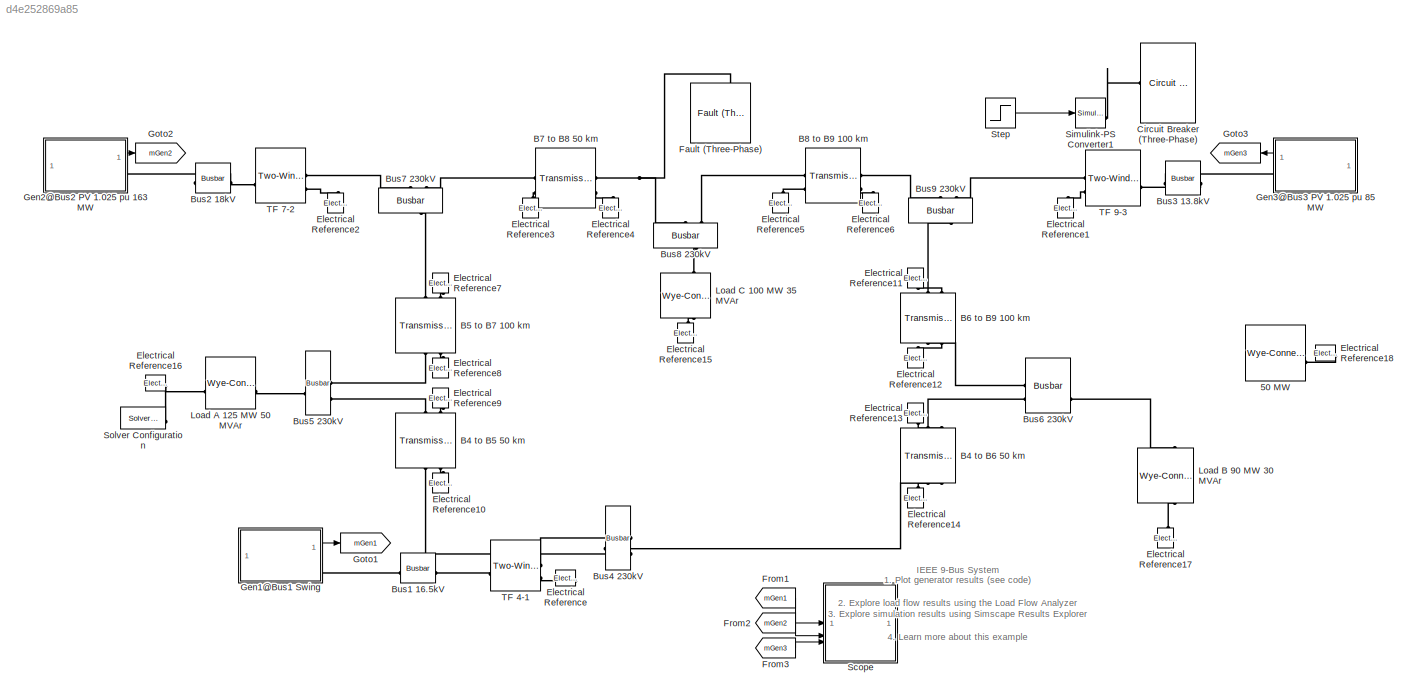
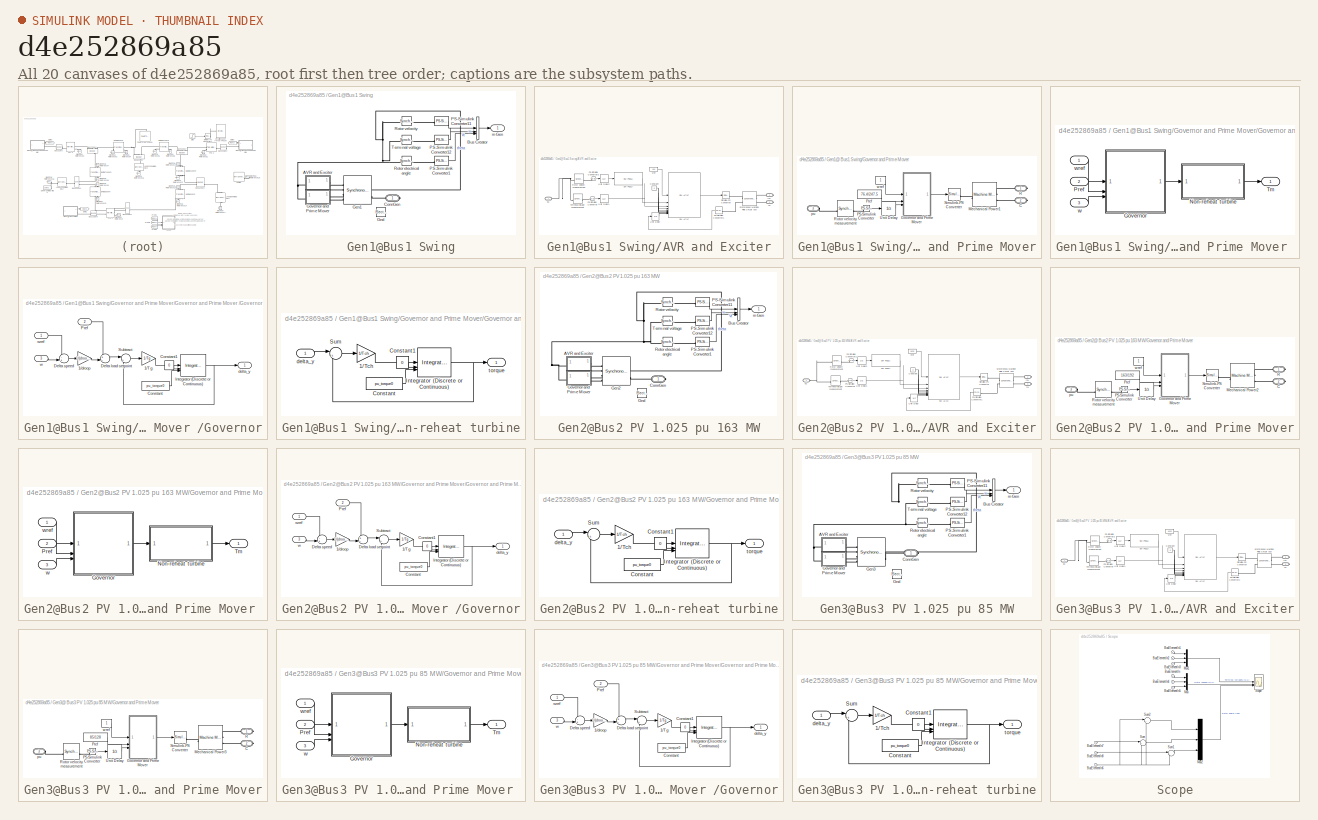
[diagram: thumbnail index - all 20 canvases of the model, root first then tree order]
MODEL slx_d4e252869a85
KIND model
CONFIG AbsTol = 1e-3
CONFIG EnableMultiTasking = on
CONFIG FixedStep = Ts
CONFIG MaxStep = auto
CONFIG MinStep = auto
CONFIG PreLoadFcn = Ts = 1/60;
CONFIG RelTol = 1e-3
CONFIG SampleTimeConstraint = Unconstrained
CONFIG SolverName = ode23t
CONFIG StartTime = 0.0
CONFIG StopTime = 10
BLOCK [Reference] 50 MW  REF=ee_lib/Passive/RLC Assemblies/Wye-Connected Load
  Commented = on
  SourceBlock = ee_lib/Passive/RLC Assemblies/Wye-Connected Load
  SourceType = Wye-Connected Load
BLOCK [Reference] B4 to B5 50 km  REF=ee_lib/Passive/Lines/Transmission
Line
(Three-Phase)
  NameLocation = right
  SourceBlock = ee_lib/Passive/Lines/Transmission\nLine\n(Three-Phase)
  SourceType = Transmission\nLine\n(Three-Phase)
BLOCK [Reference] B4 to B6 50 km  REF=ee_lib/Passive/Lines/Transmission
Line
(Three-Phase)
  NameLocation = left
  SourceBlock = ee_lib/Passive/Lines/Transmission\nLine\n(Three-Phase)
  SourceType = Transmission\nLine\n(Three-Phase)
BLOCK [Reference] B5 to B7 100 km  REF=ee_lib/Passive/Lines/Transmission
Line
(Three-Phase)
  NameLocation = right
  SourceBlock = ee_lib/Passive/Lines/Transmission\nLine\n(Three-Phase)
  SourceType = Transmission\nLine\n(Three-Phase)
BLOCK [Reference] B6 to B9 100 km  REF=ee_lib/Passive/Lines/Transmission
Line
(Three-Phase)
  NameLocation = left
  SourceBlock = ee_lib/Passive/Lines/Transmission\nLine\n(Three-Phase)
  SourceType = Transmission\nLine\n(Three-Phase)
BLOCK [Reference] B7 to B8 50 km  REF=ee_lib/Passive/Lines/Transmission
Line
(Three-Phase)
  SourceBlock = ee_lib/Passive/Lines/Transmission\nLine\n(Three-Phase)
  SourceType = Transmission\nLine\n(Three-Phase)
BLOCK [Reference] B8 to B9 100 km  REF=ee_lib/Passive/Lines/Transmission
Line
(Three-Phase)
  SourceBlock = ee_lib/Passive/Lines/Transmission\nLine\n(Three-Phase)
  SourceType = Transmission\nLine\n(Three-Phase)
BLOCK [Reference] Bus1 16.5kV  REF=ee_lib/Connectors &
References/Busbar
  AttributesFormatString = %<Tag>
  SourceBlock = ee_lib/Connectors &\nReferences/Busbar
  SourceType = Busbar
  Tag = 1.040 pu\n0.00 deg\n76.4  -76.4 MW\n27.4  -27.4 Mvar
BLOCK [Reference] Bus2 18kV  REF=ee_lib/Connectors &
References/Busbar
  AttributesFormatString = %<Tag>
  SourceBlock = ee_lib/Connectors &\nReferences/Busbar
  SourceType = Busbar
  Tag = 1.025 pu\n8.88 deg\n163.0 -163.0 MW\n7.3   -7.3 Mvar
BLOCK [Reference] Bus3 13.8kV  REF=ee_lib/Connectors &
References/Busbar
  AttributesFormatString = %<Tag>
  SourceBlock = ee_lib/Connectors &\nReferences/Busbar
  SourceType = Busbar
  Tag = 1.025 pu\n4.24 deg\n85.0  -85.0 MW\n-9.8    9.8 Mvar
BLOCK [Reference] Bus4 230kV  REF=ee_lib/Connectors &
References/Busbar
  AttributesFormatString = %<Tag>
  SourceBlock = ee_lib/Connectors &\nReferences/Busbar
  SourceType = Busbar
  Tag = 1.026 pu\n27.64 deg\n76.2  -34.1  -42.1 MW\n23.7   -1.4  -22.3 Mvar
BLOCK [Reference] Bus5 230kV  REF=ee_lib/Connectors &
References/Busbar
  AttributesFormatString = %<Tag>
  SourceBlock = ee_lib/Connectors &\nReferences/Busbar
  SourceType = Busbar
  Tag = 0.996 pu\n25.81 deg\n82.1 -124.0   41.9 MW\n11.5  -49.6   38.1 Mvar
BLOCK [Reference] Bus6 230kV  REF=ee_lib/Connectors &
References/Busbar
  AttributesFormatString = %<Tag>
  SourceBlock = ee_lib/Connectors &\nReferences/Busbar
  SourceType = Busbar
  Tag = 1.012 pu\n26.00 deg\n58.3    0.0   33.9  -92.1 MW\n14.0    0.0   16.7  -30.7 Mvar
BLOCK [Reference] Bus7 230kV  REF=ee_lib/Connectors &
References/Busbar
  AttributesFormatString = %<Tag>
  NameLocation = right
  SourceBlock = ee_lib/Connectors &\nReferences/Busbar
  SourceType = Busbar
  Tag = 1.025 pu\n33.32 deg\n162.7  -84.3  -78.4 MW\n-8.7    8.8   -0.1 Mvar
BLOCK [Reference] Bus8 230kV  REF=ee_lib/Connectors &
References/Busbar
  AttributesFormatString = %<Tag>
  NameLocation = right
  SourceBlock = ee_lib/Connectors &\nReferences/Busbar
  SourceType = Busbar
  Tag = 1.015 pu\n30.24 deg\n77.9 -103.0   25.1 MW\n11.3  -36.0   24.7 Mvar
BLOCK [Reference] Bus9 230kV  REF=ee_lib/Connectors &
References/Busbar
  AttributesFormatString = %<Tag>
  NameLocation = right
  SourceBlock = ee_lib/Connectors &\nReferences/Busbar
  SourceType = Busbar
  Tag = 1.032 pu\n31.54 deg\n-25.2  -59.6   84.8 MW\n-3.7   17.7  -14.1 Mvar
BLOCK [Reference] Circuit Breaker (Three-Phase)  REF=ee_lib/Switches & Breakers/Circuit Breaker
(Three-Phase)
  Commented = on
  SourceBlock = ee_lib/Switches & Breakers/Circuit Breaker\n(Three-Phase)
  SourceType = Circuit Breaker\n(Three-Phase)
BLOCK [Reference] Electrical Reference  REF=fl_lib/Electrical/Electrical Elements/Electrical Reference
  NameLocation = top
  SourceBlock = fl_lib/Electrical/Electrical Elements/Electrical Reference
  SourceType = Electrical Reference
BLOCK [Reference] Electrical Reference1  REF=fl_lib/Electrical/Electrical Elements/Electrical Reference
  SourceBlock = fl_lib/Electrical/Electrical Elements/Electrical Reference
  SourceType = Electrical Reference
BLOCK [Reference] Electrical Reference10  REF=fl_lib/Electrical/Electrical Elements/Electrical Reference
  SourceBlock = fl_lib/Electrical/Electrical Elements/Electrical Reference
  SourceType = Electrical Reference
BLOCK [Reference] Electrical Reference11  REF=fl_lib/Electrical/Electrical Elements/Electrical Reference
  NameLocation = left
  SourceBlock = fl_lib/Electrical/Electrical Elements/Electrical Reference
  SourceType = Electrical Reference
BLOCK [Reference] Electrical Reference12  REF=fl_lib/Electrical/Electrical Elements/Electrical Reference
  SourceBlock = fl_lib/Electrical/Electrical Elements/Electrical Reference
  SourceType = Electrical Reference
BLOCK [Reference] Electrical Reference13  REF=fl_lib/Electrical/Electrical Elements/Electrical Reference
  NameLocation = left
  SourceBlock = fl_lib/Electrical/Electrical Elements/Electrical Reference
  SourceType = Electrical Reference
BLOCK [Reference] Electrical Reference14  REF=fl_lib/Electrical/Electrical Elements/Electrical Reference
  SourceBlock = fl_lib/Electrical/Electrical Elements/Electrical Reference
  SourceType = Electrical Reference
BLOCK [Reference] Electrical Reference15  REF=fl_lib/Electrical/Electrical Elements/Electrical Reference
  SourceBlock = fl_lib/Electrical/Electrical Elements/Electrical Reference
  SourceType = Electrical Reference
BLOCK [Reference] Electrical Reference16  REF=fl_lib/Electrical/Electrical Elements/Electrical Reference
  SourceBlock = fl_lib/Electrical/Electrical Elements/Electrical Reference
  SourceType = Electrical Reference
BLOCK [Reference] Electrical Reference17  REF=fl_lib/Electrical/Electrical Elements/Electrical Reference
  SourceBlock = fl_lib/Electrical/Electrical Elements/Electrical Reference
  SourceType = Electrical Reference
BLOCK [Reference] Electrical Reference18  REF=fl_lib/Electrical/Electrical Elements/Electrical Reference
  Commented = on
  NameLocation = top
  SourceBlock = fl_lib/Electrical/Electrical Elements/Electrical Reference
  SourceType = Electrical Reference
BLOCK [Reference] Electrical Reference2  REF=fl_lib/Electrical/Electrical Elements/Electrical Reference
  SourceBlock = fl_lib/Electrical/Electrical Elements/Electrical Reference
  SourceType = Electrical Reference
BLOCK [Reference] Electrical Reference3  REF=fl_lib/Electrical/Electrical Elements/Electrical Reference
  SourceBlock = fl_lib/Electrical/Electrical Elements/Electrical Reference
  SourceType = Electrical Reference
BLOCK [Reference] Electrical Reference4  REF=fl_lib/Electrical/Electrical Elements/Electrical Reference
  SourceBlock = fl_lib/Electrical/Electrical Elements/Electrical Reference
  SourceType = Electrical Reference
BLOCK [Reference] Electrical Reference5  REF=fl_lib/Electrical/Electrical Elements/Electrical Reference
  SourceBlock = fl_lib/Electrical/Electrical Elements/Electrical Reference
  SourceType = Electrical Reference
BLOCK [Reference] Electrical Reference6  REF=fl_lib/Electrical/Electrical Elements/Electrical Reference
  SourceBlock = fl_lib/Electrical/Electrical Elements/Electrical Reference
  SourceType = Electrical Reference
BLOCK [Reference] Electrical Reference7  REF=fl_lib/Electrical/Electrical Elements/Electrical Reference
  NameLocation = left
  SourceBlock = fl_lib/Electrical/Electrical Elements/Electrical Reference
  SourceType = Electrical Reference
BLOCK [Reference] Electrical Reference8  REF=fl_lib/Electrical/Electrical Elements/Electrical Reference
  SourceBlock = fl_lib/Electrical/Electrical Elements/Electrical Reference
  SourceType = Electrical Reference
BLOCK [Reference] Electrical Reference9  REF=fl_lib/Electrical/Electrical Elements/Electrical Reference
  NameLocation = left
  SourceBlock = fl_lib/Electrical/Electrical Elements/Electrical Reference
  SourceType = Electrical Reference
BLOCK [Reference] Fault (Three-Phase)  REF=ee_lib/Utilities/Fault (Three-Phase)
  NameLocation = right
  SourceBlock = ee_lib/Utilities/Fault (Three-Phase)
  SourceType = Fault (Three-Phase)
BLOCK [From] From1
  GotoTag = mGen1
BLOCK [From] From2
  GotoTag = mGen2
BLOCK [From] From3
  GotoTag = mGen3
BLOCK [SubSystem] Gen1@Bus1 Swing
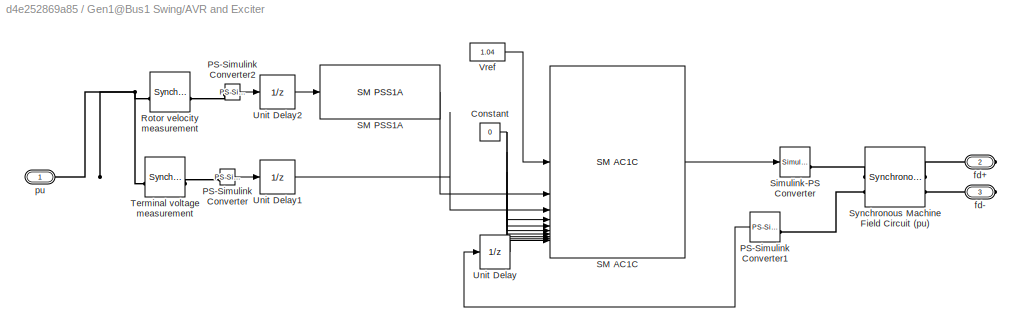
BLOCK [SubSystem] Gen1@Bus1 Swing/AVR and Exciter
  NameLocation = top
BLOCK [Constant] Gen1@Bus1 Swing/AVR and Exciter/Constant
  Value = 0
BLOCK [Reference] Gen1@Bus1 Swing/AVR and Exciter/PS-Simulink Converter  REF=nesl_utility/PS-Simulink
Converter
  AttributesFormatString = %<Unit>
  SourceBlock = nesl_utility/PS-Simulink\nConverter
  SourceType = PS-Simulink\nConverter
BLOCK [Reference] Gen1@Bus1 Swing/AVR and Exciter/PS-Simulink Converter1  REF=nesl_utility/PS-Simulink
Converter
  AttributesFormatString = %<Unit>
  SourceBlock = nesl_utility/PS-Simulink\nConverter
  SourceType = PS-Simulink\nConverter
BLOCK [Reference] Gen1@Bus1 Swing/AVR and Exciter/PS-Simulink Converter2  REF=nesl_utility/PS-Simulink
Converter
  AttributesFormatString = %<Unit>
  SourceBlock = nesl_utility/PS-Simulink\nConverter
  SourceType = PS-Simulink\nConverter
BLOCK [Reference] Gen1@Bus1 Swing/AVR and Exciter/Rotor velocity measurement  REF=ee_lib/Electromechanical/Synchronous/Synchronous Machine
Measurement
  SourceBlock = ee_lib/Electromechanical/Synchronous/Synchronous Machine\nMeasurement
  SourceType = Synchronous Machine\nMeasurement
BLOCK [Reference] Gen1@Bus1 Swing/AVR and Exciter/SM AC1C  REF=eeSmAC1C/SM AC1C
  SourceBlock = eeSmAC1C/SM AC1C
  SourceType = SM AC1C
BLOCK [Reference] Gen1@Bus1 Swing/AVR and Exciter/SM PSS1A  REF=eeSmPSS1A/SM PSS1A
  SourceBlock = eeSmPSS1A/SM PSS1A
  SourceType = SM PSS1A
BLOCK [Reference] Gen1@Bus1 Swing/AVR and Exciter/Simulink-PS Converter  REF=nesl_utility/Simulink-PS
Converter
  AttributesFormatString = %<Unit>
  SourceBlock = nesl_utility/Simulink-PS\nConverter
  SourceType = Simulink-PS\nConverter
BLOCK [Reference] Gen1@Bus1 Swing/AVR and Exciter/Synchronous Machine Field Circuit (pu)  REF=ee_lib/Electromechanical/Synchronous/Synchronous Machine
Field Circuit
  SourceBlock = ee_lib/Electromechanical/Synchronous/Synchronous Machine\nField Circuit
  SourceType = Synchronous Machine\nField Circuit
BLOCK [Reference] Gen1@Bus1 Swing/AVR and Exciter/Terminal voltage measurement  REF=ee_lib/Electromechanical/Synchronous/Synchronous Machine
Measurement
  SourceBlock = ee_lib/Electromechanical/Synchronous/Synchronous Machine\nMeasurement
  SourceType = Synchronous Machine\nMeasurement
BLOCK [UnitDelay] Gen1@Bus1 Swing/AVR and Exciter/Unit Delay
  HasFrameUpgradeWarning = on
  InitialCondition = 1.08614
  SampleTime = Ts
BLOCK [UnitDelay] Gen1@Bus1 Swing/AVR and Exciter/Unit Delay1
  HasFrameUpgradeWarning = on
  InitialCondition = 1.04
  SampleTime = Ts
BLOCK [UnitDelay] Gen1@Bus1 Swing/AVR and Exciter/Unit Delay2
  HasFrameUpgradeWarning = on
  InitialCondition = 1
  SampleTime = Ts
BLOCK [Constant] Gen1@Bus1 Swing/AVR and Exciter/Vref
  Value = 1.04
BLOCK [PMIOPort] Gen1@Bus1 Swing/AVR and Exciter/fd+
  Port = 2
  Side = Right
BLOCK [PMIOPort] Gen1@Bus1 Swing/AVR and Exciter/fd-
  Port = 3
  Side = Right
BLOCK [PMIOPort] Gen1@Bus1 Swing/AVR and Exciter/pu
  Side = Left
BLOCK [BusCreator] Gen1@Bus1 Swing/Bus Creator
  DisplayOption = bar
  InheritFromInputs = on
  Inputs = 3
BLOCK [PMIOPort] Gen1@Bus1 Swing/ConnGen
  Side = Right
BLOCK [Reference] Gen1@Bus1 Swing/Gen1  REF=ee_lib/Electromechanical/Synchronous/Synchronous Machine
Salient Pole
  SourceBlock = ee_lib/Electromechanical/Synchronous/Synchronous Machine\nSalient Pole
  SourceType = Synchronous Machine\nSalient Pole
BLOCK [Reference] Gen1@Bus1 Swing/Gnd  REF=fl_lib/Electrical/Electrical Elements/Electrical Reference
  Commented = on
  NameLocation = right
  SourceBlock = fl_lib/Electrical/Electrical Elements/Electrical Reference
  SourceType = Electrical Reference
BLOCK [SubSystem] Gen1@Bus1 Swing/Governor and Prime Mover
BLOCK [PMIOPort] Gen1@Bus1 Swing/Governor and Prime Mover/C
  Port = 2
  Side = Right
BLOCK [SubSystem] Gen1@Bus1 Swing/Governor and Prime Mover/Governor and Prime Mover 
BLOCK [SubSystem] Gen1@Bus1 Swing/Governor and Prime Mover/Governor and Prime Mover /Governor
BLOCK [Gain] Gen1@Bus1 Swing/Governor and Prime Mover/Governor and Prime Mover /Governor/1//Tg
  Gain = 1/Tg
BLOCK [Gain] Gen1@Bus1 Swing/Governor and Prime Mover/Governor and Prime Mover /Governor/1//droop
  Gain = 1/(droop_percentage/100)
BLOCK [Constant] Gen1@Bus1 Swing/Governor and Prime Mover/Governor and Prime Mover /Governor/Constant
  Value = pu_torque0
BLOCK [Constant] Gen1@Bus1 Swing/Governor and Prime Mover/Governor and Prime Mover /Governor/Constant1
  Value = 0
BLOCK [Sum] Gen1@Bus1 Swing/Governor and Prime Mover/Governor and Prime Mover /Governor/Delta load setpoint
  Inputs = +-|
BLOCK [Sum] Gen1@Bus1 Swing/Governor and Prime Mover/Governor and Prime Mover /Governor/Delta speed
  Inputs = -+|
BLOCK [Reference] Gen1@Bus1 Swing/Governor and Prime Mover/Governor and Prime Mover /Governor/Integrator (Discrete or Continuous)  REF=eeGeneralControl/Integrator
(Discrete or Continuous)
  SourceBlock = eeGeneralControl/Integrator\n(Discrete or Continuous)
  SourceType = Integrator (Discrete or Continuous)
BLOCK [Inport] Gen1@Bus1 Swing/Governor and Prime Mover/Governor and Prime Mover /Governor/Pref
  Port = 2
BLOCK [Sum] Gen1@Bus1 Swing/Governor and Prime Mover/Governor and Prime Mover /Governor/Subtract
  Inputs = |+-
BLOCK [Outport] Gen1@Bus1 Swing/Governor and Prime Mover/Governor and Prime Mover /Governor/delta_y
  VectorParamsAs1DForOutWhenUnconnected = off
BLOCK [Inport] Gen1@Bus1 Swing/Governor and Prime Mover/Governor and Prime Mover /Governor/w
  Port = 3
BLOCK [Inport] Gen1@Bus1 Swing/Governor and Prime Mover/Governor and Prime Mover /Governor/wref
BLOCK [SubSystem] Gen1@Bus1 Swing/Governor and Prime Mover/Governor and Prime Mover /Non-reheat turbine
BLOCK [Gain] Gen1@Bus1 Swing/Governor and Prime Mover/Governor and Prime Mover /Non-reheat turbine/1//Tch
  Gain = 1/Tch
BLOCK [Constant] Gen1@Bus1 Swing/Governor and Prime Mover/Governor and Prime Mover /Non-reheat turbine/Constant
  Value = pu_torque0
BLOCK [Constant] Gen1@Bus1 Swing/Governor and Prime Mover/Governor and Prime Mover /Non-reheat turbine/Constant1
  Value = 0
BLOCK [Reference] Gen1@Bus1 Swing/Governor and Prime Mover/Governor and Prime Mover /Non-reheat turbine/Integrator (Discrete or Continuous)  REF=eeGeneralControl/Integrator
(Discrete or Continuous)
  SourceBlock = eeGeneralControl/Integrator\n(Discrete or Continuous)
  SourceType = Integrator (Discrete or Continuous)
BLOCK [Sum] Gen1@Bus1 Swing/Governor and Prime Mover/Governor and Prime Mover /Non-reheat turbine/Sum
  Inputs = |+-
BLOCK [Inport] Gen1@Bus1 Swing/Governor and Prime Mover/Governor and Prime Mover /Non-reheat turbine/delta_y
BLOCK [Outport] Gen1@Bus1 Swing/Governor and Prime Mover/Governor and Prime Mover /Non-reheat turbine/torque
  VectorParamsAs1DForOutWhenUnconnected = off
BLOCK [Inport] Gen1@Bus1 Swing/Governor and Prime Mover/Governor and Prime Mover /Pref
  Port = 2
BLOCK [Outport] Gen1@Bus1 Swing/Governor and Prime Mover/Governor and Prime Mover /Tm
  VectorParamsAs1DForOutWhenUnconnected = off
BLOCK [Inport] Gen1@Bus1 Swing/Governor and Prime Mover/Governor and Prime Mover /w
  Port = 3
BLOCK [Inport] Gen1@Bus1 Swing/Governor and Prime Mover/Governor and Prime Mover /wref
BLOCK [Reference] Gen1@Bus1 Swing/Governor and Prime Mover/Mechanical Power1  REF=ee_lib/Electromechanical/Mechanical/Machine Mechanical
Power
  SourceBlock = ee_lib/Electromechanical/Mechanical/Machine Mechanical\nPower
  SourceType = Machine Mechanical\nPower
BLOCK [Reference] Gen1@Bus1 Swing/Governor and Prime Mover/PS-Simulink Converter  REF=nesl_utility/PS-Simulink
Converter
  AttributesFormatString = %<Unit>
  SourceBlock = nesl_utility/PS-Simulink\nConverter
  SourceType = PS-Simulink\nConverter
BLOCK [Constant] Gen1@Bus1 Swing/Governor and Prime Mover/Pref
  Value = 76.4/247.5
BLOCK [PMIOPort] Gen1@Bus1 Swing/Governor and Prime Mover/R
  Side = Right
BLOCK [Reference] Gen1@Bus1 Swing/Governor and Prime Mover/Rotor velocity measurement  REF=ee_lib/Electromechanical/Synchronous/Synchronous Machine
Measurement
  SourceBlock = ee_lib/Electromechanical/Synchronous/Synchronous Machine\nMeasurement
  SourceType = Synchronous Machine\nMeasurement
BLOCK [Reference] Gen1@Bus1 Swing/Governor and Prime Mover/Simulink-PS Converter  REF=nesl_utility/Simulink-PS
Converter
  AttributesFormatString = %<Unit>
  SourceBlock = nesl_utility/Simulink-PS\nConverter
  SourceType = Simulink-PS\nConverter
BLOCK [UnitDelay] Gen1@Bus1 Swing/Governor and Prime Mover/Unit Delay
  HasFrameUpgradeWarning = on
  InitialCondition = 1
  SampleTime = Ts
BLOCK [PMIOPort] Gen1@Bus1 Swing/Governor and Prime Mover/pu
  Port = 3
  Side = Left
BLOCK [Constant] Gen1@Bus1 Swing/Governor and Prime Mover/wref
BLOCK [Reference] Gen1@Bus1 Swing/PS-Simulink Converter1  REF=nesl_utility/PS-Simulink
Converter
  AttributesFormatString = %<Unit>
  SourceBlock = nesl_utility/PS-Simulink\nConverter
  SourceType = PS-Simulink\nConverter
BLOCK [Reference] Gen1@Bus1 Swing/PS-Simulink Converter11  REF=nesl_utility/PS-Simulink
Converter
  AttributesFormatString = %<Unit>
  SourceBlock = nesl_utility/PS-Simulink\nConverter
  SourceType = PS-Simulink\nConverter
BLOCK [Reference] Gen1@Bus1 Swing/PS-Simulink Converter12  REF=nesl_utility/PS-Simulink
Converter
  AttributesFormatString = %<Unit>
  SourceBlock = nesl_utility/PS-Simulink\nConverter
  SourceType = PS-Simulink\nConverter
BLOCK [Reference] Gen1@Bus1 Swing/Rotor electrical angle  REF=ee_lib/Electromechanical/Synchronous/Synchronous Machine
Measurement
  SourceBlock = ee_lib/Electromechanical/Synchronous/Synchronous Machine\nMeasurement
  SourceType = Synchronous Machine\nMeasurement
BLOCK [Reference] Gen1@Bus1 Swing/Rotor velocity  REF=ee_lib/Electromechanical/Synchronous/Synchronous Machine
Measurement
  SourceBlock = ee_lib/Electromechanical/Synchronous/Synchronous Machine\nMeasurement
  SourceType = Synchronous Machine\nMeasurement
BLOCK [Reference] Gen1@Bus1 Swing/Terminal voltage  REF=ee_lib/Electromechanical/Synchronous/Synchronous Machine
Measurement
  SourceBlock = ee_lib/Electromechanical/Synchronous/Synchronous Machine\nMeasurement
  SourceType = Synchronous Machine\nMeasurement
BLOCK [Outport] Gen1@Bus1 Swing/mGen
BLOCK [SubSystem] Gen2@Bus2 PV 1.025 pu 163 MW
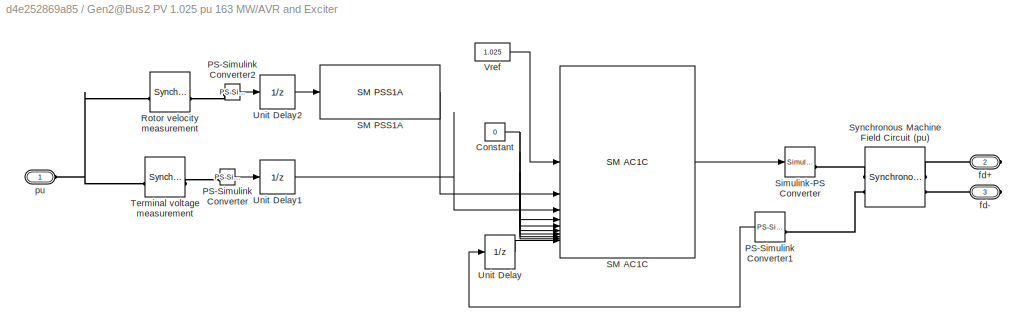
BLOCK [SubSystem] Gen2@Bus2 PV 1.025 pu 163 MW/AVR and Exciter
  NameLocation = top
BLOCK [Constant] Gen2@Bus2 PV 1.025 pu 163 MW/AVR and Exciter/Constant
  Value = 0
BLOCK [Reference] Gen2@Bus2 PV 1.025 pu 163 MW/AVR and Exciter/PS-Simulink Converter  REF=nesl_utility/PS-Simulink
Converter
  AttributesFormatString = %<Unit>
  SourceBlock = nesl_utility/PS-Simulink\nConverter
  SourceType = PS-Simulink\nConverter
BLOCK [Reference] Gen2@Bus2 PV 1.025 pu 163 MW/AVR and Exciter/PS-Simulink Converter1  REF=nesl_utility/PS-Simulink
Converter
  AttributesFormatString = %<Unit>
  SourceBlock = nesl_utility/PS-Simulink\nConverter
  SourceType = PS-Simulink\nConverter
BLOCK [Reference] Gen2@Bus2 PV 1.025 pu 163 MW/AVR and Exciter/PS-Simulink Converter2  REF=nesl_utility/PS-Simulink
Converter
  AttributesFormatString = %<Unit>
  SourceBlock = nesl_utility/PS-Simulink\nConverter
  SourceType = PS-Simulink\nConverter
BLOCK [Reference] Gen2@Bus2 PV 1.025 pu 163 MW/AVR and Exciter/Rotor velocity measurement  REF=ee_lib/Electromechanical/Synchronous/Synchronous Machine
Measurement
  SourceBlock = ee_lib/Electromechanical/Synchronous/Synchronous Machine\nMeasurement
  SourceType = Synchronous Machine\nMeasurement
BLOCK [Reference] Gen2@Bus2 PV 1.025 pu 163 MW/AVR and Exciter/SM AC1C  REF=eeSmAC1C/SM AC1C
  SourceBlock = eeSmAC1C/SM AC1C
  SourceType = SM AC1C
BLOCK [Reference] Gen2@Bus2 PV 1.025 pu 163 MW/AVR and Exciter/SM PSS1A  REF=eeSmPSS1A/SM PSS1A
  SourceBlock = eeSmPSS1A/SM PSS1A
  SourceType = SM PSS1A
BLOCK [Reference] Gen2@Bus2 PV 1.025 pu 163 MW/AVR and Exciter/Simulink-PS Converter  REF=nesl_utility/Simulink-PS
Converter
  AttributesFormatString = %<Unit>
  SourceBlock = nesl_utility/Simulink-PS\nConverter
  SourceType = Simulink-PS\nConverter
BLOCK [Reference] Gen2@Bus2 PV 1.025 pu 163 MW/AVR and Exciter/Synchronous Machine Field Circuit (pu)  REF=ee_lib/Electromechanical/Synchronous/Synchronous Machine
Field Circuit
  SourceBlock = ee_lib/Electromechanical/Synchronous/Synchronous Machine\nField Circuit
  SourceType = Synchronous Machine\nField Circuit
BLOCK [Reference] Gen2@Bus2 PV 1.025 pu 163 MW/AVR and Exciter/Terminal voltage measurement  REF=ee_lib/Electromechanical/Synchronous/Synchronous Machine
Measurement
  SourceBlock = ee_lib/Electromechanical/Synchronous/Synchronous Machine\nMeasurement
  SourceType = Synchronous Machine\nMeasurement
BLOCK [UnitDelay] Gen2@Bus2 PV 1.025 pu 163 MW/AVR and Exciter/Unit Delay
  HasFrameUpgradeWarning = on
  InitialCondition = 1.79759
  SampleTime = Ts
BLOCK [UnitDelay] Gen2@Bus2 PV 1.025 pu 163 MW/AVR and Exciter/Unit Delay1
  HasFrameUpgradeWarning = on
  InitialCondition = 1.025
  SampleTime = Ts
BLOCK [UnitDelay] Gen2@Bus2 PV 1.025 pu 163 MW/AVR and Exciter/Unit Delay2
  HasFrameUpgradeWarning = on
  InitialCondition = 1
  SampleTime = Ts
BLOCK [Constant] Gen2@Bus2 PV 1.025 pu 163 MW/AVR and Exciter/Vref
  Value = 1.025
BLOCK [PMIOPort] Gen2@Bus2 PV 1.025 pu 163 MW/AVR and Exciter/fd+
  Port = 2
  Side = Right
BLOCK [PMIOPort] Gen2@Bus2 PV 1.025 pu 163 MW/AVR and Exciter/fd-
  Port = 3
  Side = Right
BLOCK [PMIOPort] Gen2@Bus2 PV 1.025 pu 163 MW/AVR and Exciter/pu
  Side = Left
BLOCK [BusCreator] Gen2@Bus2 PV 1.025 pu 163 MW/Bus Creator
  DisplayOption = bar
  InheritFromInputs = on
  Inputs = 3
BLOCK [PMIOPort] Gen2@Bus2 PV 1.025 pu 163 MW/ConnGen
  Side = Right
BLOCK [Reference] Gen2@Bus2 PV 1.025 pu 163 MW/Gen2  REF=ee_lib/Electromechanical/Synchronous/Synchronous Machine
Round Rotor
  SourceBlock = ee_lib/Electromechanical/Synchronous/Synchronous Machine\nRound Rotor
  SourceType = Synchronous Machine\nRound Rotor
BLOCK [Reference] Gen2@Bus2 PV 1.025 pu 163 MW/Gnd  REF=fl_lib/Electrical/Electrical Elements/Electrical Reference
  Commented = on
  NameLocation = right
  SourceBlock = fl_lib/Electrical/Electrical Elements/Electrical Reference
  SourceType = Electrical Reference
BLOCK [SubSystem] Gen2@Bus2 PV 1.025 pu 163 MW/Governor and Prime Mover
BLOCK [PMIOPort] Gen2@Bus2 PV 1.025 pu 163 MW/Governor and Prime Mover/C
  Port = 2
  Side = Right
BLOCK [SubSystem] Gen2@Bus2 PV 1.025 pu 163 MW/Governor and Prime Mover/Governor and Prime Mover 
BLOCK [SubSystem] Gen2@Bus2 PV 1.025 pu 163 MW/Governor and Prime Mover/Governor and Prime Mover /Governor
BLOCK [Gain] Gen2@Bus2 PV 1.025 pu 163 MW/Governor and Prime Mover/Governor and Prime Mover /Governor/1//Tg
  Gain = 1/Tg
BLOCK [Gain] Gen2@Bus2 PV 1.025 pu 163 MW/Governor and Prime Mover/Governor and Prime Mover /Governor/1//droop
  Gain = 1/(droop_percentage/100)
BLOCK [Constant] Gen2@Bus2 PV 1.025 pu 163 MW/Governor and Prime Mover/Governor and Prime Mover /Governor/Constant
  Value = pu_torque0
BLOCK [Constant] Gen2@Bus2 PV 1.025 pu 163 MW/Governor and Prime Mover/Governor and Prime Mover /Governor/Constant1
  Value = 0
BLOCK [Sum] Gen2@Bus2 PV 1.025 pu 163 MW/Governor and Prime Mover/Governor and Prime Mover /Governor/Delta load setpoint
  Inputs = +-|
BLOCK [Sum] Gen2@Bus2 PV 1.025 pu 163 MW/Governor and Prime Mover/Governor and Prime Mover /Governor/Delta speed
  Inputs = -+|
BLOCK [Reference] Gen2@Bus2 PV 1.025 pu 163 MW/Governor and Prime Mover/Governor and Prime Mover /Governor/Integrator (Discrete or Continuous)  REF=eeGeneralControl/Integrator
(Discrete or Continuous)
  SourceBlock = eeGeneralControl/Integrator\n(Discrete or Continuous)
  SourceType = Integrator (Discrete or Continuous)
BLOCK [Inport] Gen2@Bus2 PV 1.025 pu 163 MW/Governor and Prime Mover/Governor and Prime Mover /Governor/Pref
  Port = 2
BLOCK [Sum] Gen2@Bus2 PV 1.025 pu 163 MW/Governor and Prime Mover/Governor and Prime Mover /Governor/Subtract
  Inputs = |+-
BLOCK [Outport] Gen2@Bus2 PV 1.025 pu 163 MW/Governor and Prime Mover/Governor and Prime Mover /Governor/delta_y
  VectorParamsAs1DForOutWhenUnconnected = off
BLOCK [Inport] Gen2@Bus2 PV 1.025 pu 163 MW/Governor and Prime Mover/Governor and Prime Mover /Governor/w
  Port = 3
BLOCK [Inport] Gen2@Bus2 PV 1.025 pu 163 MW/Governor and Prime Mover/Governor and Prime Mover /Governor/wref
BLOCK [SubSystem] Gen2@Bus2 PV 1.025 pu 163 MW/Governor and Prime Mover/Governor and Prime Mover /Non-reheat turbine
BLOCK [Gain] Gen2@Bus2 PV 1.025 pu 163 MW/Governor and Prime Mover/Governor and Prime Mover /Non-reheat turbine/1//Tch
  Gain = 1/Tch
BLOCK [Constant] Gen2@Bus2 PV 1.025 pu 163 MW/Governor and Prime Mover/Governor and Prime Mover /Non-reheat turbine/Constant
  Value = pu_torque0
BLOCK [Constant] Gen2@Bus2 PV 1.025 pu 163 MW/Governor and Prime Mover/Governor and Prime Mover /Non-reheat turbine/Constant1
  Value = 0
BLOCK [Reference] Gen2@Bus2 PV 1.025 pu 163 MW/Governor and Prime Mover/Governor and Prime Mover /Non-reheat turbine/Integrator (Discrete or Continuous)  REF=eeGeneralControl/Integrator
(Discrete or Continuous)
  SourceBlock = eeGeneralControl/Integrator\n(Discrete or Continuous)
  SourceType = Integrator (Discrete or Continuous)
BLOCK [Sum] Gen2@Bus2 PV 1.025 pu 163 MW/Governor and Prime Mover/Governor and Prime Mover /Non-reheat turbine/Sum
  Inputs = |+-
BLOCK [Inport] Gen2@Bus2 PV 1.025 pu 163 MW/Governor and Prime Mover/Governor and Prime Mover /Non-reheat turbine/delta_y
BLOCK [Outport] Gen2@Bus2 PV 1.025 pu 163 MW/Governor and Prime Mover/Governor and Prime Mover /Non-reheat turbine/torque
  VectorParamsAs1DForOutWhenUnconnected = off
BLOCK [Inport] Gen2@Bus2 PV 1.025 pu 163 MW/Governor and Prime Mover/Governor and Prime Mover /Pref
  Port = 2
BLOCK [Outport] Gen2@Bus2 PV 1.025 pu 163 MW/Governor and Prime Mover/Governor and Prime Mover /Tm
  VectorParamsAs1DForOutWhenUnconnected = off
BLOCK [Inport] Gen2@Bus2 PV 1.025 pu 163 MW/Governor and Prime Mover/Governor and Prime Mover /w
  Port = 3
BLOCK [Inport] Gen2@Bus2 PV 1.025 pu 163 MW/Governor and Prime Mover/Governor and Prime Mover /wref
BLOCK [Reference] Gen2@Bus2 PV 1.025 pu 163 MW/Governor and Prime Mover/Mechanical Power2  REF=ee_lib/Electromechanical/Mechanical/Machine Mechanical
Power
  SourceBlock = ee_lib/Electromechanical/Mechanical/Machine Mechanical\nPower
  SourceType = Machine Mechanical\nPower
BLOCK [Reference] Gen2@Bus2 PV 1.025 pu 163 MW/Governor and Prime Mover/PS-Simulink Converter  REF=nesl_utility/PS-Simulink
Converter
  AttributesFormatString = %<Unit>
  SourceBlock = nesl_utility/PS-Simulink\nConverter
  SourceType = PS-Simulink\nConverter
BLOCK [Constant] Gen2@Bus2 PV 1.025 pu 163 MW/Governor and Prime Mover/Pref
  Value = 163/192
BLOCK [PMIOPort] Gen2@Bus2 PV 1.025 pu 163 MW/Governor and Prime Mover/R
  Side = Right
BLOCK [Reference] Gen2@Bus2 PV 1.025 pu 163 MW/Governor and Prime Mover/Rotor velocity measurement  REF=ee_lib/Electromechanical/Synchronous/Synchronous Machine
Measurement
  SourceBlock = ee_lib/Electromechanical/Synchronous/Synchronous Machine\nMeasurement
  SourceType = Synchronous Machine\nMeasurement
BLOCK [Reference] Gen2@Bus2 PV 1.025 pu 163 MW/Governor and Prime Mover/Simulink-PS Converter  REF=nesl_utility/Simulink-PS
Converter
  AttributesFormatString = %<Unit>
  SourceBlock = nesl_utility/Simulink-PS\nConverter
  SourceType = Simulink-PS\nConverter
BLOCK [UnitDelay] Gen2@Bus2 PV 1.025 pu 163 MW/Governor and Prime Mover/Unit Delay
  HasFrameUpgradeWarning = on
  InitialCondition = 1
  SampleTime = Ts
BLOCK [PMIOPort] Gen2@Bus2 PV 1.025 pu 163 MW/Governor and Prime Mover/pu
  Port = 3
  Side = Left
BLOCK [Constant] Gen2@Bus2 PV 1.025 pu 163 MW/Governor and Prime Mover/wref
BLOCK [Reference] Gen2@Bus2 PV 1.025 pu 163 MW/PS-Simulink Converter1  REF=nesl_utility/PS-Simulink
Converter
  AttributesFormatString = %<Unit>
  SourceBlock = nesl_utility/PS-Simulink\nConverter
  SourceType = PS-Simulink\nConverter
BLOCK [Reference] Gen2@Bus2 PV 1.025 pu 163 MW/PS-Simulink Converter11  REF=nesl_utility/PS-Simulink
Converter
  AttributesFormatString = %<Unit>
  SourceBlock = nesl_utility/PS-Simulink\nConverter
  SourceType = PS-Simulink\nConverter
BLOCK [Reference] Gen2@Bus2 PV 1.025 pu 163 MW/PS-Simulink Converter12  REF=nesl_utility/PS-Simulink
Converter
  AttributesFormatString = %<Unit>
  SourceBlock = nesl_utility/PS-Simulink\nConverter
  SourceType = PS-Simulink\nConverter
BLOCK [Reference] Gen2@Bus2 PV 1.025 pu 163 MW/Rotor electrical angle  REF=ee_lib/Electromechanical/Synchronous/Synchronous Machine
Measurement
  SourceBlock = ee_lib/Electromechanical/Synchronous/Synchronous Machine\nMeasurement
  SourceType = Synchronous Machine\nMeasurement
BLOCK [Reference] Gen2@Bus2 PV 1.025 pu 163 MW/Rotor velocity  REF=ee_lib/Electromechanical/Synchronous/Synchronous Machine
Measurement
  SourceBlock = ee_lib/Electromechanical/Synchronous/Synchronous Machine\nMeasurement
  SourceType = Synchronous Machine\nMeasurement
BLOCK [Reference] Gen2@Bus2 PV 1.025 pu 163 MW/Terminal voltage  REF=ee_lib/Electromechanical/Synchronous/Synchronous Machine
Measurement
  SourceBlock = ee_lib/Electromechanical/Synchronous/Synchronous Machine\nMeasurement
  SourceType = Synchronous Machine\nMeasurement
BLOCK [Outport] Gen2@Bus2 PV 1.025 pu 163 MW/mGen
BLOCK [SubSystem] Gen3@Bus3 PV 1.025 pu 85 MW
BLOCK [SubSystem] Gen3@Bus3 PV 1.025 pu 85 MW/AVR and Exciter
  NameLocation = top
BLOCK [Constant] Gen3@Bus3 PV 1.025 pu 85 MW/AVR and Exciter/Constant
  Value = 0
BLOCK [Reference] Gen3@Bus3 PV 1.025 pu 85 MW/AVR and Exciter/PS-Simulink Converter  REF=nesl_utility/PS-Simulink
Converter
  AttributesFormatString = %<Unit>
  SourceBlock = nesl_utility/PS-Simulink\nConverter
  SourceType = PS-Simulink\nConverter
BLOCK [Reference] Gen3@Bus3 PV 1.025 pu 85 MW/AVR and Exciter/PS-Simulink Converter1  REF=nesl_utility/PS-Simulink
Converter
  AttributesFormatString = %<Unit>
  SourceBlock = nesl_utility/PS-Simulink\nConverter
  SourceType = PS-Simulink\nConverter
BLOCK [Reference] Gen3@Bus3 PV 1.025 pu 85 MW/AVR and Exciter/PS-Simulink Converter2  REF=nesl_utility/PS-Simulink
Converter
  AttributesFormatString = %<Unit>
  SourceBlock = nesl_utility/PS-Simulink\nConverter
  SourceType = PS-Simulink\nConverter
BLOCK [Reference] Gen3@Bus3 PV 1.025 pu 85 MW/AVR and Exciter/Rotor velocity measurement  REF=ee_lib/Electromechanical/Synchronous/Synchronous Machine
Measurement
  SourceBlock = ee_lib/Electromechanical/Synchronous/Synchronous Machine\nMeasurement
  SourceType = Synchronous Machine\nMeasurement
BLOCK [Reference] Gen3@Bus3 PV 1.025 pu 85 MW/AVR and Exciter/SM AC1C  REF=eeSmAC1C/SM AC1C
  SourceBlock = eeSmAC1C/SM AC1C
  SourceType = SM AC1C
BLOCK [Reference] Gen3@Bus3 PV 1.025 pu 85 MW/AVR and Exciter/SM PSS1A  REF=eeSmPSS1A/SM PSS1A
  SourceBlock = eeSmPSS1A/SM PSS1A
  SourceType = SM PSS1A
BLOCK [Reference] Gen3@Bus3 PV 1.025 pu 85 MW/AVR and Exciter/Simulink-PS Converter  REF=nesl_utility/Simulink-PS
Converter
  AttributesFormatString = %<Unit>
  SourceBlock = nesl_utility/Simulink-PS\nConverter
  SourceType = Simulink-PS\nConverter
BLOCK [Reference] Gen3@Bus3 PV 1.025 pu 85 MW/AVR and Exciter/Synchronous Machine Field Circuit (pu)  REF=ee_lib/Electromechanical/Synchronous/Synchronous Machine
Field Circuit
  SourceBlock = ee_lib/Electromechanical/Synchronous/Synchronous Machine\nField Circuit
  SourceType = Synchronous Machine\nField Circuit
BLOCK [Reference] Gen3@Bus3 PV 1.025 pu 85 MW/AVR and Exciter/Terminal voltage measurement  REF=ee_lib/Electromechanical/Synchronous/Synchronous Machine
Measurement
  SourceBlock = ee_lib/Electromechanical/Synchronous/Synchronous Machine\nMeasurement
  SourceType = Synchronous Machine\nMeasurement
BLOCK [UnitDelay] Gen3@Bus3 PV 1.025 pu 85 MW/AVR and Exciter/Unit Delay
  HasFrameUpgradeWarning = on
  InitialCondition = 1.41658
  SampleTime = Ts
BLOCK [UnitDelay] Gen3@Bus3 PV 1.025 pu 85 MW/AVR and Exciter/Unit Delay1
  HasFrameUpgradeWarning = on
  InitialCondition = 1.025
  SampleTime = Ts
BLOCK [UnitDelay] Gen3@Bus3 PV 1.025 pu 85 MW/AVR and Exciter/Unit Delay2
  HasFrameUpgradeWarning = on
  InitialCondition = 1
  SampleTime = Ts
BLOCK [Constant] Gen3@Bus3 PV 1.025 pu 85 MW/AVR and Exciter/Vref
  Value = 1.025
BLOCK [PMIOPort] Gen3@Bus3 PV 1.025 pu 85 MW/AVR and Exciter/fd+
  Port = 2
  Side = Right
BLOCK [PMIOPort] Gen3@Bus3 PV 1.025 pu 85 MW/AVR and Exciter/fd-
  Port = 3
  Side = Right
BLOCK [PMIOPort] Gen3@Bus3 PV 1.025 pu 85 MW/AVR and Exciter/pu
  Side = Left
BLOCK [BusCreator] Gen3@Bus3 PV 1.025 pu 85 MW/Bus Creator
  DisplayOption = bar
  InheritFromInputs = on
  Inputs = 3
BLOCK [PMIOPort] Gen3@Bus3 PV 1.025 pu 85 MW/ConnGen
  Side = Right
BLOCK [Reference] Gen3@Bus3 PV 1.025 pu 85 MW/Gen3  REF=ee_lib/Electromechanical/Synchronous/Synchronous Machine
Round Rotor
  SourceBlock = ee_lib/Electromechanical/Synchronous/Synchronous Machine\nRound Rotor
  SourceType = Synchronous Machine\nRound Rotor
BLOCK [Reference] Gen3@Bus3 PV 1.025 pu 85 MW/Gnd  REF=fl_lib/Electrical/Electrical Elements/Electrical Reference
  Commented = on
  NameLocation = right
  SourceBlock = fl_lib/Electrical/Electrical Elements/Electrical Reference
  SourceType = Electrical Reference
BLOCK [SubSystem] Gen3@Bus3 PV 1.025 pu 85 MW/Governor and Prime Mover
BLOCK [PMIOPort] Gen3@Bus3 PV 1.025 pu 85 MW/Governor and Prime Mover/C
  Port = 2
  Side = Right
BLOCK [SubSystem] Gen3@Bus3 PV 1.025 pu 85 MW/Governor and Prime Mover/Governor and Prime Mover 
BLOCK [SubSystem] Gen3@Bus3 PV 1.025 pu 85 MW/Governor and Prime Mover/Governor and Prime Mover /Governor
BLOCK [Gain] Gen3@Bus3 PV 1.025 pu 85 MW/Governor and Prime Mover/Governor and Prime Mover /Governor/1//Tg
  Gain = 1/Tg
BLOCK [Gain] Gen3@Bus3 PV 1.025 pu 85 MW/Governor and Prime Mover/Governor and Prime Mover /Governor/1//droop
  Gain = 1/(droop_percentage/100)
BLOCK [Constant] Gen3@Bus3 PV 1.025 pu 85 MW/Governor and Prime Mover/Governor and Prime Mover /Governor/Constant
  Value = pu_torque0
BLOCK [Constant] Gen3@Bus3 PV 1.025 pu 85 MW/Governor and Prime Mover/Governor and Prime Mover /Governor/Constant1
  Value = 0
BLOCK [Sum] Gen3@Bus3 PV 1.025 pu 85 MW/Governor and Prime Mover/Governor and Prime Mover /Governor/Delta load setpoint
  Inputs = +-|
BLOCK [Sum] Gen3@Bus3 PV 1.025 pu 85 MW/Governor and Prime Mover/Governor and Prime Mover /Governor/Delta speed
  Inputs = -+|
BLOCK [Reference] Gen3@Bus3 PV 1.025 pu 85 MW/Governor and Prime Mover/Governor and Prime Mover /Governor/Integrator (Discrete or Continuous)  REF=eeGeneralControl/Integrator
(Discrete or Continuous)
  SourceBlock = eeGeneralControl/Integrator\n(Discrete or Continuous)
  SourceType = Integrator (Discrete or Continuous)
BLOCK [Inport] Gen3@Bus3 PV 1.025 pu 85 MW/Governor and Prime Mover/Governor and Prime Mover /Governor/Pref
  Port = 2
BLOCK [Sum] Gen3@Bus3 PV 1.025 pu 85 MW/Governor and Prime Mover/Governor and Prime Mover /Governor/Subtract
  Inputs = |+-
BLOCK [Outport] Gen3@Bus3 PV 1.025 pu 85 MW/Governor and Prime Mover/Governor and Prime Mover /Governor/delta_y
  VectorParamsAs1DForOutWhenUnconnected = off
BLOCK [Inport] Gen3@Bus3 PV 1.025 pu 85 MW/Governor and Prime Mover/Governor and Prime Mover /Governor/w
  Port = 3
BLOCK [Inport] Gen3@Bus3 PV 1.025 pu 85 MW/Governor and Prime Mover/Governor and Prime Mover /Governor/wref
BLOCK [SubSystem] Gen3@Bus3 PV 1.025 pu 85 MW/Governor and Prime Mover/Governor and Prime Mover /Non-reheat turbine
BLOCK [Gain] Gen3@Bus3 PV 1.025 pu 85 MW/Governor and Prime Mover/Governor and Prime Mover /Non-reheat turbine/1//Tch
  Gain = 1/Tch
BLOCK [Constant] Gen3@Bus3 PV 1.025 pu 85 MW/Governor and Prime Mover/Governor and Prime Mover /Non-reheat turbine/Constant
  Value = pu_torque0
BLOCK [Constant] Gen3@Bus3 PV 1.025 pu 85 MW/Governor and Prime Mover/Governor and Prime Mover /Non-reheat turbine/Constant1
  Value = 0
BLOCK [Reference] Gen3@Bus3 PV 1.025 pu 85 MW/Governor and Prime Mover/Governor and Prime Mover /Non-reheat turbine/Integrator (Discrete or Continuous)  REF=eeGeneralControl/Integrator
(Discrete or Continuous)
  SourceBlock = eeGeneralControl/Integrator\n(Discrete or Continuous)
  SourceType = Integrator (Discrete or Continuous)
BLOCK [Sum] Gen3@Bus3 PV 1.025 pu 85 MW/Governor and Prime Mover/Governor and Prime Mover /Non-reheat turbine/Sum
  Inputs = |+-
BLOCK [Inport] Gen3@Bus3 PV 1.025 pu 85 MW/Governor and Prime Mover/Governor and Prime Mover /Non-reheat turbine/delta_y
BLOCK [Outport] Gen3@Bus3 PV 1.025 pu 85 MW/Governor and Prime Mover/Governor and Prime Mover /Non-reheat turbine/torque
  VectorParamsAs1DForOutWhenUnconnected = off
BLOCK [Inport] Gen3@Bus3 PV 1.025 pu 85 MW/Governor and Prime Mover/Governor and Prime Mover /Pref
  Port = 2
BLOCK [Outport] Gen3@Bus3 PV 1.025 pu 85 MW/Governor and Prime Mover/Governor and Prime Mover /Tm
  VectorParamsAs1DForOutWhenUnconnected = off
BLOCK [Inport] Gen3@Bus3 PV 1.025 pu 85 MW/Governor and Prime Mover/Governor and Prime Mover /w
  Port = 3
BLOCK [Inport] Gen3@Bus3 PV 1.025 pu 85 MW/Governor and Prime Mover/Governor and Prime Mover /wref
BLOCK [Reference] Gen3@Bus3 PV 1.025 pu 85 MW/Governor and Prime Mover/Mechanical Power3  REF=ee_lib/Electromechanical/Mechanical/Machine Mechanical
Power
  SourceBlock = ee_lib/Electromechanical/Mechanical/Machine Mechanical\nPower
  SourceType = Machine Mechanical\nPower
BLOCK [Reference] Gen3@Bus3 PV 1.025 pu 85 MW/Governor and Prime Mover/PS-Simulink Converter  REF=nesl_utility/PS-Simulink
Converter
  AttributesFormatString = %<Unit>
  SourceBlock = nesl_utility/PS-Simulink\nConverter
  SourceType = PS-Simulink\nConverter
BLOCK [Constant] Gen3@Bus3 PV 1.025 pu 85 MW/Governor and Prime Mover/Pref
  Value = 85/128
BLOCK [PMIOPort] Gen3@Bus3 PV 1.025 pu 85 MW/Governor and Prime Mover/R
  Side = Right
BLOCK [Reference] Gen3@Bus3 PV 1.025 pu 85 MW/Governor and Prime Mover/Rotor velocity measurement  REF=ee_lib/Electromechanical/Synchronous/Synchronous Machine
Measurement
  SourceBlock = ee_lib/Electromechanical/Synchronous/Synchronous Machine\nMeasurement
  SourceType = Synchronous Machine\nMeasurement
BLOCK [Reference] Gen3@Bus3 PV 1.025 pu 85 MW/Governor and Prime Mover/Simulink-PS Converter  REF=nesl_utility/Simulink-PS
Converter
  AttributesFormatString = %<Unit>
  SourceBlock = nesl_utility/Simulink-PS\nConverter
  SourceType = Simulink-PS\nConverter
BLOCK [UnitDelay] Gen3@Bus3 PV 1.025 pu 85 MW/Governor and Prime Mover/Unit Delay
  HasFrameUpgradeWarning = on
  InitialCondition = 1
  SampleTime = Ts
BLOCK [PMIOPort] Gen3@Bus3 PV 1.025 pu 85 MW/Governor and Prime Mover/pu
  Port = 3
  Side = Left
BLOCK [Constant] Gen3@Bus3 PV 1.025 pu 85 MW/Governor and Prime Mover/wref
BLOCK [Reference] Gen3@Bus3 PV 1.025 pu 85 MW/PS-Simulink Converter1  REF=nesl_utility/PS-Simulink
Converter
  AttributesFormatString = %<Unit>
  SourceBlock = nesl_utility/PS-Simulink\nConverter
  SourceType = PS-Simulink\nConverter
BLOCK [Reference] Gen3@Bus3 PV 1.025 pu 85 MW/PS-Simulink Converter11  REF=nesl_utility/PS-Simulink
Converter
  AttributesFormatString = %<Unit>
  SourceBlock = nesl_utility/PS-Simulink\nConverter
  SourceType = PS-Simulink\nConverter
BLOCK [Reference] Gen3@Bus3 PV 1.025 pu 85 MW/PS-Simulink Converter12  REF=nesl_utility/PS-Simulink
Converter
  AttributesFormatString = %<Unit>
  SourceBlock = nesl_utility/PS-Simulink\nConverter
  SourceType = PS-Simulink\nConverter
BLOCK [Reference] Gen3@Bus3 PV 1.025 pu 85 MW/Rotor electrical angle  REF=ee_lib/Electromechanical/Synchronous/Synchronous Machine
Measurement
  SourceBlock = ee_lib/Electromechanical/Synchronous/Synchronous Machine\nMeasurement
  SourceType = Synchronous Machine\nMeasurement
BLOCK [Reference] Gen3@Bus3 PV 1.025 pu 85 MW/Rotor velocity  REF=ee_lib/Electromechanical/Synchronous/Synchronous Machine
Measurement
  SourceBlock = ee_lib/Electromechanical/Synchronous/Synchronous Machine\nMeasurement
  SourceType = Synchronous Machine\nMeasurement
BLOCK [Reference] Gen3@Bus3 PV 1.025 pu 85 MW/Terminal voltage  REF=ee_lib/Electromechanical/Synchronous/Synchronous Machine
Measurement
  SourceBlock = ee_lib/Electromechanical/Synchronous/Synchronous Machine\nMeasurement
  SourceType = Synchronous Machine\nMeasurement
BLOCK [Outport] Gen3@Bus3 PV 1.025 pu 85 MW/mGen
BLOCK [Goto] Goto1
  GotoTag = mGen1
BLOCK [Goto] Goto2
  GotoTag = mGen2
BLOCK [Goto] Goto3
  GotoTag = mGen3
BLOCK [Reference] Load A 125 MW 50 MVAr  REF=ee_lib/Passive/RLC Assemblies/Wye-Connected Load
  SourceBlock = ee_lib/Passive/RLC Assemblies/Wye-Connected Load
  SourceType = Wye-Connected Load
BLOCK [Reference] Load B 90 MW 30 MVAr  REF=ee_lib/Passive/RLC Assemblies/Wye-Connected Load
  NameLocation = right
  SourceBlock = ee_lib/Passive/RLC Assemblies/Wye-Connected Load
  SourceType = Wye-Connected Load
BLOCK [Reference] Load C 100 MW 35 MVAr  REF=ee_lib/Passive/RLC Assemblies/Wye-Connected Load
  NameLocation = left
  SourceBlock = ee_lib/Passive/RLC Assemblies/Wye-Connected Load
  SourceType = Wye-Connected Load
BLOCK [SubSystem] Scope
BLOCK [Inport] Scope/BusElementIn
BLOCK [Inport] Scope/BusElementIn1
BLOCK [Inport] Scope/BusElementIn2
  Port = 2
BLOCK [Inport] Scope/BusElementIn3
  Port = 3
BLOCK [Inport] Scope/BusElementIn4
  Port = 2
BLOCK [Inport] Scope/BusElementIn5
  Port = 3
BLOCK [Inport] Scope/BusElementIn6
BLOCK [Inport] Scope/BusElementIn7
  Port = 2
BLOCK [Inport] Scope/BusElementIn8
  Port = 3
BLOCK [Mux] Scope/Mux
  DisplayOption = bar
  Inputs = 3
  NameLocation = left
BLOCK [Mux] Scope/Mux1
  DisplayOption = bar
  Inputs = 3
  NameLocation = left
BLOCK [Mux] Scope/Mux2
  DisplayOption = bar
  Inputs = 3
  NameLocation = left
BLOCK [Scope] Scope/Scope
  Floating = off
  NumInputPorts = 3
  ScopeSpecificationString = Simulink.scopes.TimeScopeBlockCfg('CurrentConfiguration', extmgr.ConfigurationSet(extmgr.Configuration('Core','General UI',true),extmgr.Configuration('Core','Source UI',true),extmgr.Configuration('Sources','WiredSimulink',true,'DataLoggingVariableName','ScopeData1'),extmgr.Configuration('Visuals','Time Domain',true,'SerializedDisplays',{struct('MinYLimReal','1.01012','MaxYLimReal','1.04332','YLabe...<+3176ch>
BLOCK [Sum] Scope/Sum
  Inputs = |+-
BLOCK [Sum] Scope/Sum1
  Inputs = |+-
BLOCK [Sum] Scope/Sum2
  Inputs = |+-
BLOCK [Reference] Simulink-PS Converter1  REF=nesl_utility/Simulink-PS
Converter
  Commented = on
  SourceBlock = nesl_utility/Simulink-PS\nConverter
  SourceType = Simulink-PS\nConverter
BLOCK [Reference] Solver Configuration  REF=nesl_utility/Solver
Configuration
  SourceBlock = nesl_utility/Solver\nConfiguration
  SourceType = Solver\nConfiguration
BLOCK [Step] Step
  After = 0
  Before = 1
  Commented = on
  SampleTime = 0
  Time = 2
BLOCK [Reference] TF 4-1  REF=ee_lib/Passive/Transformers/Two-Winding
Transformer
(Three-Phase)
  SourceBlock = ee_lib/Passive/Transformers/Two-Winding\nTransformer\n(Three-Phase)
  SourceType = Two-Winding\nTransformer\n(Three-Phase)
BLOCK [Reference] TF 7-2  REF=ee_lib/Passive/Transformers/Two-Winding
Transformer
(Three-Phase)
  SourceBlock = ee_lib/Passive/Transformers/Two-Winding\nTransformer\n(Three-Phase)
  SourceType = Two-Winding\nTransformer\n(Three-Phase)
BLOCK [Reference] TF 9-3  REF=ee_lib/Passive/Transformers/Two-Winding
Transformer
(Three-Phase)
  SourceBlock = ee_lib/Passive/Transformers/Two-Winding\nTransformer\n(Three-Phase)
  SourceType = Two-Winding\nTransformer\n(Three-Phase)
ANNOTATION (root): 1. Plot generator results ( see code ) 2. Explore load flow results using the Load Flow Analyzer 3. Explore simulation results using Simscape Results Explorer 4. Learn more about this example
ANNOTATION (root): IEEE 9-Bus System
LINE From1:1 -> Scope:1
LINE From2:1 -> Scope:2
LINE From3:1 -> Scope:3
NET Gen1@Bus1 Swing/AVR and Exciter/Constant:1 -> Gen1@Bus1 Swing/AVR and Exciter/SM AC1C:4, Gen1@Bus1 Swing/AVR and Exciter/SM AC1C:5, Gen1@Bus1 Swing/AVR and Exciter/SM AC1C:6, Gen1@Bus1 Swing/AVR and Exciter/SM AC1C:7, Gen1@Bus1 Swing/AVR and Exciter/SM AC1C:8, Gen1@Bus1 Swing/AVR and Exciter/SM AC1C:9
LINE Gen1@Bus1 Swing/AVR and Exciter/PS-Simulink Converter1:1 -> Gen1@Bus1 Swing/AVR and Exciter/Unit Delay:1
LINE Gen1@Bus1 Swing/AVR and Exciter/PS-Simulink Converter2:1 -> Gen1@Bus1 Swing/AVR and Exciter/Unit Delay2:1
LINE Gen1@Bus1 Swing/AVR and Exciter/PS-Simulink Converter:1 -> Gen1@Bus1 Swing/AVR and Exciter/Unit Delay1:1
LINE Gen1@Bus1 Swing/AVR and Exciter/SM AC1C:1 -> Gen1@Bus1 Swing/AVR and Exciter/Simulink-PS Converter:1
LINE Gen1@Bus1 Swing/AVR and Exciter/SM PSS1A:1 -> Gen1@Bus1 Swing/AVR and Exciter/SM AC1C:2
LINE Gen1@Bus1 Swing/AVR and Exciter/Unit Delay1:1 -> Gen1@Bus1 Swing/AVR and Exciter/SM AC1C:3
LINE Gen1@Bus1 Swing/AVR and Exciter/Unit Delay2:1 -> Gen1@Bus1 Swing/AVR and Exciter/SM PSS1A:1
LINE Gen1@Bus1 Swing/AVR and Exciter/Unit Delay:1 -> Gen1@Bus1 Swing/AVR and Exciter/SM AC1C:10
LINE Gen1@Bus1 Swing/AVR and Exciter/Vref:1 -> Gen1@Bus1 Swing/AVR and Exciter/SM AC1C:1
LINE Gen1@Bus1 Swing/Bus Creator:1 -> Gen1@Bus1 Swing/mGen:1
LINE Gen1@Bus1 Swing/Governor and Prime Mover/Governor and Prime Mover /Governor/1//Tg:1 -> Gen1@Bus1 Swing/Governor and Prime Mover/Governor and Prime Mover /Governor/Integrator (Discrete or Continuous):1
LINE Gen1@Bus1 Swing/Governor and Prime Mover/Governor and Prime Mover /Governor/1//droop:1 -> Gen1@Bus1 Swing/Governor and Prime Mover/Governor and Prime Mover /Governor/Delta load setpoint:2
LINE Gen1@Bus1 Swing/Governor and Prime Mover/Governor and Prime Mover /Governor/Constant1:1 -> Gen1@Bus1 Swing/Governor and Prime Mover/Governor and Prime Mover /Governor/Integrator (Discrete or Continuous):2
LINE Gen1@Bus1 Swing/Governor and Prime Mover/Governor and Prime Mover /Governor/Constant:1 -> Gen1@Bus1 Swing/Governor and Prime Mover/Governor and Prime Mover /Governor/Integrator (Discrete or Continuous):3
LINE Gen1@Bus1 Swing/Governor and Prime Mover/Governor and Prime Mover /Governor/Delta load setpoint:1 -> Gen1@Bus1 Swing/Governor and Prime Mover/Governor and Prime Mover /Governor/Subtract:1
LINE Gen1@Bus1 Swing/Governor and Prime Mover/Governor and Prime Mover /Governor/Delta speed:1 -> Gen1@Bus1 Swing/Governor and Prime Mover/Governor and Prime Mover /Governor/1//droop:1
NET Gen1@Bus1 Swing/Governor and Prime Mover/Governor and Prime Mover /Governor/Integrator (Discrete or Continuous):1 -> Gen1@Bus1 Swing/Governor and Prime Mover/Governor and Prime Mover /Governor/Subtract:2, Gen1@Bus1 Swing/Governor and Prime Mover/Governor and Prime Mover /Governor/delta_y:1
LINE Gen1@Bus1 Swing/Governor and Prime Mover/Governor and Prime Mover /Governor/Pref:1 -> Gen1@Bus1 Swing/Governor and Prime Mover/Governor and Prime Mover /Governor/Delta load setpoint:1
LINE Gen1@Bus1 Swing/Governor and Prime Mover/Governor and Prime Mover /Governor/Subtract:1 -> Gen1@Bus1 Swing/Governor and Prime Mover/Governor and Prime Mover /Governor/1//Tg:1
LINE Gen1@Bus1 Swing/Governor and Prime Mover/Governor and Prime Mover /Governor/w:1 -> Gen1@Bus1 Swing/Governor and Prime Mover/Governor and Prime Mover /Governor/Delta speed:2
LINE Gen1@Bus1 Swing/Governor and Prime Mover/Governor and Prime Mover /Governor/wref:1 -> Gen1@Bus1 Swing/Governor and Prime Mover/Governor and Prime Mover /Governor/Delta speed:1
LINE Gen1@Bus1 Swing/Governor and Prime Mover/Governor and Prime Mover /Governor:1 -> Gen1@Bus1 Swing/Governor and Prime Mover/Governor and Prime Mover /Non-reheat turbine:1
LINE Gen1@Bus1 Swing/Governor and Prime Mover/Governor and Prime Mover /Non-reheat turbine/1//Tch:1 -> Gen1@Bus1 Swing/Governor and Prime Mover/Governor and Prime Mover /Non-reheat turbine/Integrator (Discrete or Continuous):1
LINE Gen1@Bus1 Swing/Governor and Prime Mover/Governor and Prime Mover /Non-reheat turbine/Constant1:1 -> Gen1@Bus1 Swing/Governor and Prime Mover/Governor and Prime Mover /Non-reheat turbine/Integrator (Discrete or Continuous):2
LINE Gen1@Bus1 Swing/Governor and Prime Mover/Governor and Prime Mover /Non-reheat turbine/Constant:1 -> Gen1@Bus1 Swing/Governor and Prime Mover/Governor and Prime Mover /Non-reheat turbine/Integrator (Discrete or Continuous):3
NET Gen1@Bus1 Swing/Governor and Prime Mover/Governor and Prime Mover /Non-reheat turbine/Integrator (Discrete or Continuous):1 -> Gen1@Bus1 Swing/Governor and Prime Mover/Governor and Prime Mover /Non-reheat turbine/Sum:2, Gen1@Bus1 Swing/Governor and Prime Mover/Governor and Prime Mover /Non-reheat turbine/torque:1
LINE Gen1@Bus1 Swing/Governor and Prime Mover/Governor and Prime Mover /Non-reheat turbine/Sum:1 -> Gen1@Bus1 Swing/Governor and Prime Mover/Governor and Prime Mover /Non-reheat turbine/1//Tch:1
LINE Gen1@Bus1 Swing/Governor and Prime Mover/Governor and Prime Mover /Non-reheat turbine/delta_y:1 -> Gen1@Bus1 Swing/Governor and Prime Mover/Governor and Prime Mover /Non-reheat turbine/Sum:1
LINE Gen1@Bus1 Swing/Governor and Prime Mover/Governor and Prime Mover /Non-reheat turbine:1 -> Gen1@Bus1 Swing/Governor and Prime Mover/Governor and Prime Mover /Tm:1
LINE Gen1@Bus1 Swing/Governor and Prime Mover/Governor and Prime Mover /Pref:1 -> Gen1@Bus1 Swing/Governor and Prime Mover/Governor and Prime Mover /Governor:2
LINE Gen1@Bus1 Swing/Governor and Prime Mover/Governor and Prime Mover /w:1 -> Gen1@Bus1 Swing/Governor and Prime Mover/Governor and Prime Mover /Governor:3
LINE Gen1@Bus1 Swing/Governor and Prime Mover/Governor and Prime Mover /wref:1 -> Gen1@Bus1 Swing/Governor and Prime Mover/Governor and Prime Mover /Governor:1
LINE Gen1@Bus1 Swing/Governor and Prime Mover/Governor and Prime Mover :1 -> Gen1@Bus1 Swing/Governor and Prime Mover/Simulink-PS Converter:1
LINE Gen1@Bus1 Swing/Governor and Prime Mover/PS-Simulink Converter:1 -> Gen1@Bus1 Swing/Governor and Prime Mover/Unit Delay:1
LINE Gen1@Bus1 Swing/Governor and Prime Mover/Pref:1 -> Gen1@Bus1 Swing/Governor and Prime Mover/Governor and Prime Mover :2
LINE Gen1@Bus1 Swing/Governor and Prime Mover/Unit Delay:1 -> Gen1@Bus1 Swing/Governor and Prime Mover/Governor and Prime Mover :3
LINE Gen1@Bus1 Swing/Governor and Prime Mover/wref:1 -> Gen1@Bus1 Swing/Governor and Prime Mover/Governor and Prime Mover :1
LINE Gen1@Bus1 Swing/PS-Simulink Converter11:1 -> Gen1@Bus1 Swing/Bus Creator:1
LINE Gen1@Bus1 Swing/PS-Simulink Converter12:1 -> Gen1@Bus1 Swing/Bus Creator:2
LINE Gen1@Bus1 Swing/PS-Simulink Converter1:1 -> Gen1@Bus1 Swing/Bus Creator:3
LINE Gen1@Bus1 Swing:1 -> Goto1:1
NET Gen2@Bus2 PV 1.025 pu 163 MW/AVR and Exciter/Constant:1 -> Gen2@Bus2 PV 1.025 pu 163 MW/AVR and Exciter/SM AC1C:4, Gen2@Bus2 PV 1.025 pu 163 MW/AVR and Exciter/SM AC1C:5, Gen2@Bus2 PV 1.025 pu 163 MW/AVR and Exciter/SM AC1C:6, Gen2@Bus2 PV 1.025 pu 163 MW/AVR and Exciter/SM AC1C:7, Gen2@Bus2 PV 1.025 pu 163 MW/AVR and Exciter/SM AC1C:8, Gen2@Bus2 PV 1.025 pu 163 MW/AVR and Exciter/SM AC1C:9
LINE Gen2@Bus2 PV 1.025 pu 163 MW/AVR and Exciter/PS-Simulink Converter1:1 -> Gen2@Bus2 PV 1.025 pu 163 MW/AVR and Exciter/Unit Delay:1
LINE Gen2@Bus2 PV 1.025 pu 163 MW/AVR and Exciter/PS-Simulink Converter2:1 -> Gen2@Bus2 PV 1.025 pu 163 MW/AVR and Exciter/Unit Delay2:1
LINE Gen2@Bus2 PV 1.025 pu 163 MW/AVR and Exciter/PS-Simulink Converter:1 -> Gen2@Bus2 PV 1.025 pu 163 MW/AVR and Exciter/Unit Delay1:1
LINE Gen2@Bus2 PV 1.025 pu 163 MW/AVR and Exciter/SM AC1C:1 -> Gen2@Bus2 PV 1.025 pu 163 MW/AVR and Exciter/Simulink-PS Converter:1
LINE Gen2@Bus2 PV 1.025 pu 163 MW/AVR and Exciter/SM PSS1A:1 -> Gen2@Bus2 PV 1.025 pu 163 MW/AVR and Exciter/SM AC1C:2
LINE Gen2@Bus2 PV 1.025 pu 163 MW/AVR and Exciter/Unit Delay1:1 -> Gen2@Bus2 PV 1.025 pu 163 MW/AVR and Exciter/SM AC1C:3
LINE Gen2@Bus2 PV 1.025 pu 163 MW/AVR and Exciter/Unit Delay2:1 -> Gen2@Bus2 PV 1.025 pu 163 MW/AVR and Exciter/SM PSS1A:1
LINE Gen2@Bus2 PV 1.025 pu 163 MW/AVR and Exciter/Unit Delay:1 -> Gen2@Bus2 PV 1.025 pu 163 MW/AVR and Exciter/SM AC1C:10
LINE Gen2@Bus2 PV 1.025 pu 163 MW/AVR and Exciter/Vref:1 -> Gen2@Bus2 PV 1.025 pu 163 MW/AVR and Exciter/SM AC1C:1
LINE Gen2@Bus2 PV 1.025 pu 163 MW/Bus Creator:1 -> Gen2@Bus2 PV 1.025 pu 163 MW/mGen:1
LINE Gen2@Bus2 PV 1.025 pu 163 MW/Governor and Prime Mover/Governor and Prime Mover /Governor/1//Tg:1 -> Gen2@Bus2 PV 1.025 pu 163 MW/Governor and Prime Mover/Governor and Prime Mover /Governor/Integrator (Discrete or Continuous):1
LINE Gen2@Bus2 PV 1.025 pu 163 MW/Governor and Prime Mover/Governor and Prime Mover /Governor/1//droop:1 -> Gen2@Bus2 PV 1.025 pu 163 MW/Governor and Prime Mover/Governor and Prime Mover /Governor/Delta load setpoint:2
LINE Gen2@Bus2 PV 1.025 pu 163 MW/Governor and Prime Mover/Governor and Prime Mover /Governor/Constant1:1 -> Gen2@Bus2 PV 1.025 pu 163 MW/Governor and Prime Mover/Governor and Prime Mover /Governor/Integrator (Discrete or Continuous):2
LINE Gen2@Bus2 PV 1.025 pu 163 MW/Governor and Prime Mover/Governor and Prime Mover /Governor/Constant:1 -> Gen2@Bus2 PV 1.025 pu 163 MW/Governor and Prime Mover/Governor and Prime Mover /Governor/Integrator (Discrete or Continuous):3
LINE Gen2@Bus2 PV 1.025 pu 163 MW/Governor and Prime Mover/Governor and Prime Mover /Governor/Delta load setpoint:1 -> Gen2@Bus2 PV 1.025 pu 163 MW/Governor and Prime Mover/Governor and Prime Mover /Governor/Subtract:1
LINE Gen2@Bus2 PV 1.025 pu 163 MW/Governor and Prime Mover/Governor and Prime Mover /Governor/Delta speed:1 -> Gen2@Bus2 PV 1.025 pu 163 MW/Governor and Prime Mover/Governor and Prime Mover /Governor/1//droop:1
NET Gen2@Bus2 PV 1.025 pu 163 MW/Governor and Prime Mover/Governor and Prime Mover /Governor/Integrator (Discrete or Continuous):1 -> Gen2@Bus2 PV 1.025 pu 163 MW/Governor and Prime Mover/Governor and Prime Mover /Governor/Subtract:2, Gen2@Bus2 PV 1.025 pu 163 MW/Governor and Prime Mover/Governor and Prime Mover /Governor/delta_y:1
LINE Gen2@Bus2 PV 1.025 pu 163 MW/Governor and Prime Mover/Governor and Prime Mover /Governor/Pref:1 -> Gen2@Bus2 PV 1.025 pu 163 MW/Governor and Prime Mover/Governor and Prime Mover /Governor/Delta load setpoint:1
LINE Gen2@Bus2 PV 1.025 pu 163 MW/Governor and Prime Mover/Governor and Prime Mover /Governor/Subtract:1 -> Gen2@Bus2 PV 1.025 pu 163 MW/Governor and Prime Mover/Governor and Prime Mover /Governor/1//Tg:1
LINE Gen2@Bus2 PV 1.025 pu 163 MW/Governor and Prime Mover/Governor and Prime Mover /Governor/w:1 -> Gen2@Bus2 PV 1.025 pu 163 MW/Governor and Prime Mover/Governor and Prime Mover /Governor/Delta speed:2
LINE Gen2@Bus2 PV 1.025 pu 163 MW/Governor and Prime Mover/Governor and Prime Mover /Governor/wref:1 -> Gen2@Bus2 PV 1.025 pu 163 MW/Governor and Prime Mover/Governor and Prime Mover /Governor/Delta speed:1
LINE Gen2@Bus2 PV 1.025 pu 163 MW/Governor and Prime Mover/Governor and Prime Mover /Governor:1 -> Gen2@Bus2 PV 1.025 pu 163 MW/Governor and Prime Mover/Governor and Prime Mover /Non-reheat turbine:1
LINE Gen2@Bus2 PV 1.025 pu 163 MW/Governor and Prime Mover/Governor and Prime Mover /Non-reheat turbine/1//Tch:1 -> Gen2@Bus2 PV 1.025 pu 163 MW/Governor and Prime Mover/Governor and Prime Mover /Non-reheat turbine/Integrator (Discrete or Continuous):1
LINE Gen2@Bus2 PV 1.025 pu 163 MW/Governor and Prime Mover/Governor and Prime Mover /Non-reheat turbine/Constant1:1 -> Gen2@Bus2 PV 1.025 pu 163 MW/Governor and Prime Mover/Governor and Prime Mover /Non-reheat turbine/Integrator (Discrete or Continuous):2
LINE Gen2@Bus2 PV 1.025 pu 163 MW/Governor and Prime Mover/Governor and Prime Mover /Non-reheat turbine/Constant:1 -> Gen2@Bus2 PV 1.025 pu 163 MW/Governor and Prime Mover/Governor and Prime Mover /Non-reheat turbine/Integrator (Discrete or Continuous):3
NET Gen2@Bus2 PV 1.025 pu 163 MW/Governor and Prime Mover/Governor and Prime Mover /Non-reheat turbine/Integrator (Discrete or Continuous):1 -> Gen2@Bus2 PV 1.025 pu 163 MW/Governor and Prime Mover/Governor and Prime Mover /Non-reheat turbine/Sum:2, Gen2@Bus2 PV 1.025 pu 163 MW/Governor and Prime Mover/Governor and Prime Mover /Non-reheat turbine/torque:1
LINE Gen2@Bus2 PV 1.025 pu 163 MW/Governor and Prime Mover/Governor and Prime Mover /Non-reheat turbine/Sum:1 -> Gen2@Bus2 PV 1.025 pu 163 MW/Governor and Prime Mover/Governor and Prime Mover /Non-reheat turbine/1//Tch:1
LINE Gen2@Bus2 PV 1.025 pu 163 MW/Governor and Prime Mover/Governor and Prime Mover /Non-reheat turbine/delta_y:1 -> Gen2@Bus2 PV 1.025 pu 163 MW/Governor and Prime Mover/Governor and Prime Mover /Non-reheat turbine/Sum:1
LINE Gen2@Bus2 PV 1.025 pu 163 MW/Governor and Prime Mover/Governor and Prime Mover /Non-reheat turbine:1 -> Gen2@Bus2 PV 1.025 pu 163 MW/Governor and Prime Mover/Governor and Prime Mover /Tm:1
LINE Gen2@Bus2 PV 1.025 pu 163 MW/Governor and Prime Mover/Governor and Prime Mover /Pref:1 -> Gen2@Bus2 PV 1.025 pu 163 MW/Governor and Prime Mover/Governor and Prime Mover /Governor:2
LINE Gen2@Bus2 PV 1.025 pu 163 MW/Governor and Prime Mover/Governor and Prime Mover /w:1 -> Gen2@Bus2 PV 1.025 pu 163 MW/Governor and Prime Mover/Governor and Prime Mover /Governor:3
LINE Gen2@Bus2 PV 1.025 pu 163 MW/Governor and Prime Mover/Governor and Prime Mover /wref:1 -> Gen2@Bus2 PV 1.025 pu 163 MW/Governor and Prime Mover/Governor and Prime Mover /Governor:1
LINE Gen2@Bus2 PV 1.025 pu 163 MW/Governor and Prime Mover/Governor and Prime Mover :1 -> Gen2@Bus2 PV 1.025 pu 163 MW/Governor and Prime Mover/Simulink-PS Converter:1
LINE Gen2@Bus2 PV 1.025 pu 163 MW/Governor and Prime Mover/PS-Simulink Converter:1 -> Gen2@Bus2 PV 1.025 pu 163 MW/Governor and Prime Mover/Unit Delay:1
LINE Gen2@Bus2 PV 1.025 pu 163 MW/Governor and Prime Mover/Pref:1 -> Gen2@Bus2 PV 1.025 pu 163 MW/Governor and Prime Mover/Governor and Prime Mover :2
LINE Gen2@Bus2 PV 1.025 pu 163 MW/Governor and Prime Mover/Unit Delay:1 -> Gen2@Bus2 PV 1.025 pu 163 MW/Governor and Prime Mover/Governor and Prime Mover :3
LINE Gen2@Bus2 PV 1.025 pu 163 MW/Governor and Prime Mover/wref:1 -> Gen2@Bus2 PV 1.025 pu 163 MW/Governor and Prime Mover/Governor and Prime Mover :1
LINE Gen2@Bus2 PV 1.025 pu 163 MW/PS-Simulink Converter11:1 -> Gen2@Bus2 PV 1.025 pu 163 MW/Bus Creator:1
LINE Gen2@Bus2 PV 1.025 pu 163 MW/PS-Simulink Converter12:1 -> Gen2@Bus2 PV 1.025 pu 163 MW/Bus Creator:2
LINE Gen2@Bus2 PV 1.025 pu 163 MW/PS-Simulink Converter1:1 -> Gen2@Bus2 PV 1.025 pu 163 MW/Bus Creator:3
LINE Gen2@Bus2 PV 1.025 pu 163 MW:1 -> Goto2:1
NET Gen3@Bus3 PV 1.025 pu 85 MW/AVR and Exciter/Constant:1 -> Gen3@Bus3 PV 1.025 pu 85 MW/AVR and Exciter/SM AC1C:4, Gen3@Bus3 PV 1.025 pu 85 MW/AVR and Exciter/SM AC1C:5, Gen3@Bus3 PV 1.025 pu 85 MW/AVR and Exciter/SM AC1C:6, Gen3@Bus3 PV 1.025 pu 85 MW/AVR and Exciter/SM AC1C:7, Gen3@Bus3 PV 1.025 pu 85 MW/AVR and Exciter/SM AC1C:8, Gen3@Bus3 PV 1.025 pu 85 MW/AVR and Exciter/SM AC1C:9
LINE Gen3@Bus3 PV 1.025 pu 85 MW/AVR and Exciter/PS-Simulink Converter1:1 -> Gen3@Bus3 PV 1.025 pu 85 MW/AVR and Exciter/Unit Delay:1
LINE Gen3@Bus3 PV 1.025 pu 85 MW/AVR and Exciter/PS-Simulink Converter2:1 -> Gen3@Bus3 PV 1.025 pu 85 MW/AVR and Exciter/Unit Delay2:1
LINE Gen3@Bus3 PV 1.025 pu 85 MW/AVR and Exciter/PS-Simulink Converter:1 -> Gen3@Bus3 PV 1.025 pu 85 MW/AVR and Exciter/Unit Delay1:1
LINE Gen3@Bus3 PV 1.025 pu 85 MW/AVR and Exciter/SM AC1C:1 -> Gen3@Bus3 PV 1.025 pu 85 MW/AVR and Exciter/Simulink-PS Converter:1
LINE Gen3@Bus3 PV 1.025 pu 85 MW/AVR and Exciter/SM PSS1A:1 -> Gen3@Bus3 PV 1.025 pu 85 MW/AVR and Exciter/SM AC1C:2
LINE Gen3@Bus3 PV 1.025 pu 85 MW/AVR and Exciter/Unit Delay1:1 -> Gen3@Bus3 PV 1.025 pu 85 MW/AVR and Exciter/SM AC1C:3
LINE Gen3@Bus3 PV 1.025 pu 85 MW/AVR and Exciter/Unit Delay2:1 -> Gen3@Bus3 PV 1.025 pu 85 MW/AVR and Exciter/SM PSS1A:1
LINE Gen3@Bus3 PV 1.025 pu 85 MW/AVR and Exciter/Unit Delay:1 -> Gen3@Bus3 PV 1.025 pu 85 MW/AVR and Exciter/SM AC1C:10
LINE Gen3@Bus3 PV 1.025 pu 85 MW/AVR and Exciter/Vref:1 -> Gen3@Bus3 PV 1.025 pu 85 MW/AVR and Exciter/SM AC1C:1
LINE Gen3@Bus3 PV 1.025 pu 85 MW/Bus Creator:1 -> Gen3@Bus3 PV 1.025 pu 85 MW/mGen:1
LINE Gen3@Bus3 PV 1.025 pu 85 MW/Governor and Prime Mover/Governor and Prime Mover /Governor/1//Tg:1 -> Gen3@Bus3 PV 1.025 pu 85 MW/Governor and Prime Mover/Governor and Prime Mover /Governor/Integrator (Discrete or Continuous):1
LINE Gen3@Bus3 PV 1.025 pu 85 MW/Governor and Prime Mover/Governor and Prime Mover /Governor/1//droop:1 -> Gen3@Bus3 PV 1.025 pu 85 MW/Governor and Prime Mover/Governor and Prime Mover /Governor/Delta load setpoint:2
LINE Gen3@Bus3 PV 1.025 pu 85 MW/Governor and Prime Mover/Governor and Prime Mover /Governor/Constant1:1 -> Gen3@Bus3 PV 1.025 pu 85 MW/Governor and Prime Mover/Governor and Prime Mover /Governor/Integrator (Discrete or Continuous):2
LINE Gen3@Bus3 PV 1.025 pu 85 MW/Governor and Prime Mover/Governor and Prime Mover /Governor/Constant:1 -> Gen3@Bus3 PV 1.025 pu 85 MW/Governor and Prime Mover/Governor and Prime Mover /Governor/Integrator (Discrete or Continuous):3
LINE Gen3@Bus3 PV 1.025 pu 85 MW/Governor and Prime Mover/Governor and Prime Mover /Governor/Delta load setpoint:1 -> Gen3@Bus3 PV 1.025 pu 85 MW/Governor and Prime Mover/Governor and Prime Mover /Governor/Subtract:1
LINE Gen3@Bus3 PV 1.025 pu 85 MW/Governor and Prime Mover/Governor and Prime Mover /Governor/Delta speed:1 -> Gen3@Bus3 PV 1.025 pu 85 MW/Governor and Prime Mover/Governor and Prime Mover /Governor/1//droop:1
NET Gen3@Bus3 PV 1.025 pu 85 MW/Governor and Prime Mover/Governor and Prime Mover /Governor/Integrator (Discrete or Continuous):1 -> Gen3@Bus3 PV 1.025 pu 85 MW/Governor and Prime Mover/Governor and Prime Mover /Governor/Subtract:2, Gen3@Bus3 PV 1.025 pu 85 MW/Governor and Prime Mover/Governor and Prime Mover /Governor/delta_y:1
LINE Gen3@Bus3 PV 1.025 pu 85 MW/Governor and Prime Mover/Governor and Prime Mover /Governor/Pref:1 -> Gen3@Bus3 PV 1.025 pu 85 MW/Governor and Prime Mover/Governor and Prime Mover /Governor/Delta load setpoint:1
LINE Gen3@Bus3 PV 1.025 pu 85 MW/Governor and Prime Mover/Governor and Prime Mover /Governor/Subtract:1 -> Gen3@Bus3 PV 1.025 pu 85 MW/Governor and Prime Mover/Governor and Prime Mover /Governor/1//Tg:1
LINE Gen3@Bus3 PV 1.025 pu 85 MW/Governor and Prime Mover/Governor and Prime Mover /Governor/w:1 -> Gen3@Bus3 PV 1.025 pu 85 MW/Governor and Prime Mover/Governor and Prime Mover /Governor/Delta speed:2
LINE Gen3@Bus3 PV 1.025 pu 85 MW/Governor and Prime Mover/Governor and Prime Mover /Governor/wref:1 -> Gen3@Bus3 PV 1.025 pu 85 MW/Governor and Prime Mover/Governor and Prime Mover /Governor/Delta speed:1
LINE Gen3@Bus3 PV 1.025 pu 85 MW/Governor and Prime Mover/Governor and Prime Mover /Governor:1 -> Gen3@Bus3 PV 1.025 pu 85 MW/Governor and Prime Mover/Governor and Prime Mover /Non-reheat turbine:1
LINE Gen3@Bus3 PV 1.025 pu 85 MW/Governor and Prime Mover/Governor and Prime Mover /Non-reheat turbine/1//Tch:1 -> Gen3@Bus3 PV 1.025 pu 85 MW/Governor and Prime Mover/Governor and Prime Mover /Non-reheat turbine/Integrator (Discrete or Continuous):1
LINE Gen3@Bus3 PV 1.025 pu 85 MW/Governor and Prime Mover/Governor and Prime Mover /Non-reheat turbine/Constant1:1 -> Gen3@Bus3 PV 1.025 pu 85 MW/Governor and Prime Mover/Governor and Prime Mover /Non-reheat turbine/Integrator (Discrete or Continuous):2
LINE Gen3@Bus3 PV 1.025 pu 85 MW/Governor and Prime Mover/Governor and Prime Mover /Non-reheat turbine/Constant:1 -> Gen3@Bus3 PV 1.025 pu 85 MW/Governor and Prime Mover/Governor and Prime Mover /Non-reheat turbine/Integrator (Discrete or Continuous):3
NET Gen3@Bus3 PV 1.025 pu 85 MW/Governor and Prime Mover/Governor and Prime Mover /Non-reheat turbine/Integrator (Discrete or Continuous):1 -> Gen3@Bus3 PV 1.025 pu 85 MW/Governor and Prime Mover/Governor and Prime Mover /Non-reheat turbine/Sum:2, Gen3@Bus3 PV 1.025 pu 85 MW/Governor and Prime Mover/Governor and Prime Mover /Non-reheat turbine/torque:1
LINE Gen3@Bus3 PV 1.025 pu 85 MW/Governor and Prime Mover/Governor and Prime Mover /Non-reheat turbine/Sum:1 -> Gen3@Bus3 PV 1.025 pu 85 MW/Governor and Prime Mover/Governor and Prime Mover /Non-reheat turbine/1//Tch:1
LINE Gen3@Bus3 PV 1.025 pu 85 MW/Governor and Prime Mover/Governor and Prime Mover /Non-reheat turbine/delta_y:1 -> Gen3@Bus3 PV 1.025 pu 85 MW/Governor and Prime Mover/Governor and Prime Mover /Non-reheat turbine/Sum:1
LINE Gen3@Bus3 PV 1.025 pu 85 MW/Governor and Prime Mover/Governor and Prime Mover /Non-reheat turbine:1 -> Gen3@Bus3 PV 1.025 pu 85 MW/Governor and Prime Mover/Governor and Prime Mover /Tm:1
LINE Gen3@Bus3 PV 1.025 pu 85 MW/Governor and Prime Mover/Governor and Prime Mover /Pref:1 -> Gen3@Bus3 PV 1.025 pu 85 MW/Governor and Prime Mover/Governor and Prime Mover /Governor:2
LINE Gen3@Bus3 PV 1.025 pu 85 MW/Governor and Prime Mover/Governor and Prime Mover /w:1 -> Gen3@Bus3 PV 1.025 pu 85 MW/Governor and Prime Mover/Governor and Prime Mover /Governor:3
LINE Gen3@Bus3 PV 1.025 pu 85 MW/Governor and Prime Mover/Governor and Prime Mover /wref:1 -> Gen3@Bus3 PV 1.025 pu 85 MW/Governor and Prime Mover/Governor and Prime Mover /Governor:1
LINE Gen3@Bus3 PV 1.025 pu 85 MW/Governor and Prime Mover/Governor and Prime Mover :1 -> Gen3@Bus3 PV 1.025 pu 85 MW/Governor and Prime Mover/Simulink-PS Converter:1
LINE Gen3@Bus3 PV 1.025 pu 85 MW/Governor and Prime Mover/PS-Simulink Converter:1 -> Gen3@Bus3 PV 1.025 pu 85 MW/Governor and Prime Mover/Unit Delay:1
LINE Gen3@Bus3 PV 1.025 pu 85 MW/Governor and Prime Mover/Pref:1 -> Gen3@Bus3 PV 1.025 pu 85 MW/Governor and Prime Mover/Governor and Prime Mover :2
LINE Gen3@Bus3 PV 1.025 pu 85 MW/Governor and Prime Mover/Unit Delay:1 -> Gen3@Bus3 PV 1.025 pu 85 MW/Governor and Prime Mover/Governor and Prime Mover :3
LINE Gen3@Bus3 PV 1.025 pu 85 MW/Governor and Prime Mover/wref:1 -> Gen3@Bus3 PV 1.025 pu 85 MW/Governor and Prime Mover/Governor and Prime Mover :1
LINE Gen3@Bus3 PV 1.025 pu 85 MW/PS-Simulink Converter11:1 -> Gen3@Bus3 PV 1.025 pu 85 MW/Bus Creator:1
LINE Gen3@Bus3 PV 1.025 pu 85 MW/PS-Simulink Converter12:1 -> Gen3@Bus3 PV 1.025 pu 85 MW/Bus Creator:2
LINE Gen3@Bus3 PV 1.025 pu 85 MW/PS-Simulink Converter1:1 -> Gen3@Bus3 PV 1.025 pu 85 MW/Bus Creator:3
LINE Gen3@Bus3 PV 1.025 pu 85 MW:1 -> Goto3:1
LINE Scope/BusElementIn1:1 -> Scope/Mux1:1
LINE Scope/BusElementIn2:1 -> Scope/Mux1:2
LINE Scope/BusElementIn3:1 -> Scope/Mux1:3
LINE Scope/BusElementIn4:1 -> Scope/Mux:2
LINE Scope/BusElementIn5:1 -> Scope/Mux:3
NET Scope/BusElementIn6:1 -> Scope/Sum1:2, Scope/Sum2:1, Scope/Sum2:2, Scope/Sum:2
LINE Scope/BusElementIn7:1 -> Scope/Sum:1
LINE Scope/BusElementIn8:1 -> Scope/Sum1:1
LINE Scope/BusElementIn:1 -> Scope/Mux:1
LINE Scope/Mux1:1 -> Scope/Scope:1
LINE Scope/Mux2:1 -> Scope/Scope:3
LINE Scope/Mux:1 -> Scope/Scope:2
LINE Scope/Sum1:1 -> Scope/Mux2:3
LINE Scope/Sum2:1 -> Scope/Mux2:1
LINE Scope/Sum:1 -> Scope/Mux2:2
LINE Step:1 -> Simulink-PS Converter1:1
PLINE 50 MW:RConn1 -- Electrical Reference18:LConn1
PLINE B4 to B5 50 km:LConn1 -- Bus4 230kV:LConn2
PLINE B4 to B5 50 km:LConn2 -- Electrical Reference10:LConn1
PLINE B4 to B5 50 km:RConn1 -- Bus5 230kV:LConn2
PLINE B4 to B5 50 km:RConn2 -- Electrical Reference9:LConn1
PLINE B4 to B6 50 km:LConn1 -- Bus4 230kV:RConn1
PLINE B4 to B6 50 km:LConn2 -- Electrical Reference14:LConn1
PLINE B4 to B6 50 km:RConn1 -- Bus6 230kV:LConn2
PLINE B4 to B6 50 km:RConn2 -- Electrical Reference13:LConn1
PLINE B5 to B7 100 km:LConn1 -- Bus5 230kV:LConn1
PLINE B5 to B7 100 km:LConn2 -- Electrical Reference8:LConn1
PLINE B5 to B7 100 km:RConn1 -- Bus7 230kV:RConn1
PLINE B5 to B7 100 km:RConn2 -- Electrical Reference7:LConn1
PLINE B6 to B9 100 km:LConn1 -- Bus6 230kV:LConn1
PLINE B6 to B9 100 km:LConn2 -- Electrical Reference12:LConn1
PLINE B6 to B9 100 km:RConn1 -- Bus9 230kV:RConn1
PLINE B6 to B9 100 km:RConn2 -- Electrical Reference11:LConn1
PLINE B7 to B8 50 km:LConn1 -- Bus7 230kV:LConn2
PLINE B7 to B8 50 km:LConn2 -- Electrical Reference3:LConn1
PNET net1: B7 to B8 50 km:RConn1 -- Bus8 230kV:LConn1 -- Fault (Three-Phase):LConn1
PLINE B7 to B8 50 km:RConn2 -- Electrical Reference4:LConn1
PLINE B8 to B9 100 km:LConn1 -- Bus8 230kV:LConn2
PLINE B8 to B9 100 km:LConn2 -- Electrical Reference5:LConn1
PLINE B8 to B9 100 km:RConn1 -- Bus9 230kV:LConn1
PLINE B8 to B9 100 km:RConn2 -- Electrical Reference6:LConn1
PLINE Bus1 16.5kV:LConn1 -- Gen1@Bus1 Swing:RConn1
PLINE Bus1 16.5kV:RConn1 -- TF 4-1:RConn1
PLINE Bus2 18kV:LConn1 -- Gen2@Bus2 PV 1.025 pu 163 MW:RConn1
PLINE Bus2 18kV:RConn1 -- TF 7-2:RConn1
PLINE Bus3 13.8kV:LConn1 -- Gen3@Bus3 PV 1.025 pu 85 MW:RConn1
PLINE Bus3 13.8kV:RConn1 -- TF 9-3:RConn1
PLINE Bus4 230kV:LConn1 -- TF 4-1:LConn1
PLINE Bus5 230kV:RConn1 -- Load A 125 MW 50 MVAr:LConn1
PLINE Bus6 230kV:RConn2 -- Load B 90 MW 30 MVAr:LConn1
PLINE Bus7 230kV:LConn1 -- TF 7-2:LConn1
PLINE Bus8 230kV:RConn1 -- Load C 100 MW 35 MVAr:LConn1
PLINE Bus9 230kV:LConn2 -- TF 9-3:LConn1
PLINE Circuit Breaker (Three-Phase):LConn1 -- Simulink-PS Converter1:RConn1
PLINE Electrical Reference15:LConn1 -- Load C 100 MW 35 MVAr:RConn1
PNET net2: Electrical Reference16:LConn1 -- Load A 125 MW 50 MVAr:RConn1 -- Solver Configuration:RConn1
PLINE Electrical Reference17:LConn1 -- Load B 90 MW 30 MVAr:RConn1
PLINE Electrical Reference1:LConn1 -- TF 9-3:LConn2
PLINE Electrical Reference2:LConn1 -- TF 7-2:LConn2
PLINE Electrical Reference:LConn1 -- TF 4-1:LConn2
PLINE Gen1@Bus1 Swing/AVR and Exciter/PS-Simulink Converter1:LConn1 -- Gen1@Bus1 Swing/AVR and Exciter/Synchronous Machine Field Circuit (pu):LConn2
PLINE Gen1@Bus1 Swing/AVR and Exciter/PS-Simulink Converter2:LConn1 -- Gen1@Bus1 Swing/AVR and Exciter/Rotor velocity measurement:RConn1
PLINE Gen1@Bus1 Swing/AVR and Exciter/PS-Simulink Converter:LConn1 -- Gen1@Bus1 Swing/AVR and Exciter/Terminal voltage measurement:RConn1
PNET net3: Gen1@Bus1 Swing/AVR and Exciter/Rotor velocity measurement:LConn1 -- Gen1@Bus1 Swing/AVR and Exciter/Terminal voltage measurement:LConn1 -- Gen1@Bus1 Swing/AVR and Exciter/pu:RConn1
PLINE Gen1@Bus1 Swing/AVR and Exciter/Simulink-PS Converter:RConn1 -- Gen1@Bus1 Swing/AVR and Exciter/Synchronous Machine Field Circuit (pu):LConn1
PLINE Gen1@Bus1 Swing/AVR and Exciter/Synchronous Machine Field Circuit (pu):RConn1 -- Gen1@Bus1 Swing/AVR and Exciter/fd+:RConn1
PLINE Gen1@Bus1 Swing/AVR and Exciter/Synchronous Machine Field Circuit (pu):RConn2 -- Gen1@Bus1 Swing/AVR and Exciter/fd-:RConn1
PNET net4: Gen1@Bus1 Swing/AVR and Exciter:LConn1 -- Gen1@Bus1 Swing/Gen1:RConn1 -- Gen1@Bus1 Swing/Governor and Prime Mover:LConn1 -- Gen1@Bus1 Swing/Rotor electrical angle:LConn1 -- Gen1@Bus1 Swing/Rotor velocity:LConn1 -- Gen1@Bus1 Swing/Terminal voltage:LConn1
PLINE Gen1@Bus1 Swing/AVR and Exciter:RConn1 -- Gen1@Bus1 Swing/Gen1:LConn1
PLINE Gen1@Bus1 Swing/AVR and Exciter:RConn2 -- Gen1@Bus1 Swing/Gen1:LConn2
PLINE Gen1@Bus1 Swing/ConnGen:RConn1 -- Gen1@Bus1 Swing/Gen1:RConn2
PLINE Gen1@Bus1 Swing/Gen1:LConn3 -- Gen1@Bus1 Swing/Governor and Prime Mover:RConn1
PLINE Gen1@Bus1 Swing/Gen1:LConn4 -- Gen1@Bus1 Swing/Governor and Prime Mover:RConn2
PLINE Gen1@Bus1 Swing/Governor and Prime Mover/C:RConn1 -- Gen1@Bus1 Swing/Governor and Prime Mover/Mechanical Power1:RConn2
PLINE Gen1@Bus1 Swing/Governor and Prime Mover/Mechanical Power1:LConn1 -- Gen1@Bus1 Swing/Governor and Prime Mover/Simulink-PS Converter:RConn1
PLINE Gen1@Bus1 Swing/Governor and Prime Mover/Mechanical Power1:RConn1 -- Gen1@Bus1 Swing/Governor and Prime Mover/R:RConn1
PLINE Gen1@Bus1 Swing/Governor and Prime Mover/PS-Simulink Converter:LConn1 -- Gen1@Bus1 Swing/Governor and Prime Mover/Rotor velocity measurement:RConn1
PLINE Gen1@Bus1 Swing/Governor and Prime Mover/Rotor velocity measurement:LConn1 -- Gen1@Bus1 Swing/Governor and Prime Mover/pu:RConn1
PLINE Gen1@Bus1 Swing/PS-Simulink Converter11:LConn1 -- Gen1@Bus1 Swing/Rotor velocity:RConn1
PLINE Gen1@Bus1 Swing/PS-Simulink Converter12:LConn1 -- Gen1@Bus1 Swing/Terminal voltage:RConn1
PLINE Gen1@Bus1 Swing/PS-Simulink Converter1:LConn1 -- Gen1@Bus1 Swing/Rotor electrical angle:RConn1
PLINE Gen2@Bus2 PV 1.025 pu 163 MW/AVR and Exciter/PS-Simulink Converter1:LConn1 -- Gen2@Bus2 PV 1.025 pu 163 MW/AVR and Exciter/Synchronous Machine Field Circuit (pu):LConn2
PLINE Gen2@Bus2 PV 1.025 pu 163 MW/AVR and Exciter/PS-Simulink Converter2:LConn1 -- Gen2@Bus2 PV 1.025 pu 163 MW/AVR and Exciter/Rotor velocity measurement:RConn1
PLINE Gen2@Bus2 PV 1.025 pu 163 MW/AVR and Exciter/PS-Simulink Converter:LConn1 -- Gen2@Bus2 PV 1.025 pu 163 MW/AVR and Exciter/Terminal voltage measurement:RConn1
PNET net5: Gen2@Bus2 PV 1.025 pu 163 MW/AVR and Exciter/Rotor velocity measurement:LConn1 -- Gen2@Bus2 PV 1.025 pu 163 MW/AVR and Exciter/Terminal voltage measurement:LConn1 -- Gen2@Bus2 PV 1.025 pu 163 MW/AVR and Exciter/pu:RConn1
PLINE Gen2@Bus2 PV 1.025 pu 163 MW/AVR and Exciter/Simulink-PS Converter:RConn1 -- Gen2@Bus2 PV 1.025 pu 163 MW/AVR and Exciter/Synchronous Machine Field Circuit (pu):LConn1
PLINE Gen2@Bus2 PV 1.025 pu 163 MW/AVR and Exciter/Synchronous Machine Field Circuit (pu):RConn1 -- Gen2@Bus2 PV 1.025 pu 163 MW/AVR and Exciter/fd+:RConn1
PLINE Gen2@Bus2 PV 1.025 pu 163 MW/AVR and Exciter/Synchronous Machine Field Circuit (pu):RConn2 -- Gen2@Bus2 PV 1.025 pu 163 MW/AVR and Exciter/fd-:RConn1
PNET net6: Gen2@Bus2 PV 1.025 pu 163 MW/AVR and Exciter:LConn1 -- Gen2@Bus2 PV 1.025 pu 163 MW/Gen2:RConn1 -- Gen2@Bus2 PV 1.025 pu 163 MW/Governor and Prime Mover:LConn1 -- Gen2@Bus2 PV 1.025 pu 163 MW/Rotor electrical angle:LConn1 -- Gen2@Bus2 PV 1.025 pu 163 MW/Rotor velocity:LConn1 -- Gen2@Bus2 PV 1.025 pu 163 MW/Terminal voltage:LConn1
PLINE Gen2@Bus2 PV 1.025 pu 163 MW/AVR and Exciter:RConn1 -- Gen2@Bus2 PV 1.025 pu 163 MW/Gen2:LConn1
PLINE Gen2@Bus2 PV 1.025 pu 163 MW/AVR and Exciter:RConn2 -- Gen2@Bus2 PV 1.025 pu 163 MW/Gen2:LConn2
PLINE Gen2@Bus2 PV 1.025 pu 163 MW/ConnGen:RConn1 -- Gen2@Bus2 PV 1.025 pu 163 MW/Gen2:RConn2
PLINE Gen2@Bus2 PV 1.025 pu 163 MW/Gen2:LConn3 -- Gen2@Bus2 PV 1.025 pu 163 MW/Governor and Prime Mover:RConn1
PLINE Gen2@Bus2 PV 1.025 pu 163 MW/Gen2:LConn4 -- Gen2@Bus2 PV 1.025 pu 163 MW/Governor and Prime Mover:RConn2
PLINE Gen2@Bus2 PV 1.025 pu 163 MW/Governor and Prime Mover/C:RConn1 -- Gen2@Bus2 PV 1.025 pu 163 MW/Governor and Prime Mover/Mechanical Power2:RConn2
PLINE Gen2@Bus2 PV 1.025 pu 163 MW/Governor and Prime Mover/Mechanical Power2:LConn1 -- Gen2@Bus2 PV 1.025 pu 163 MW/Governor and Prime Mover/Simulink-PS Converter:RConn1
PLINE Gen2@Bus2 PV 1.025 pu 163 MW/Governor and Prime Mover/Mechanical Power2:RConn1 -- Gen2@Bus2 PV 1.025 pu 163 MW/Governor and Prime Mover/R:RConn1
PLINE Gen2@Bus2 PV 1.025 pu 163 MW/Governor and Prime Mover/PS-Simulink Converter:LConn1 -- Gen2@Bus2 PV 1.025 pu 163 MW/Governor and Prime Mover/Rotor velocity measurement:RConn1
PLINE Gen2@Bus2 PV 1.025 pu 163 MW/Governor and Prime Mover/Rotor velocity measurement:LConn1 -- Gen2@Bus2 PV 1.025 pu 163 MW/Governor and Prime Mover/pu:RConn1
PLINE Gen2@Bus2 PV 1.025 pu 163 MW/PS-Simulink Converter11:LConn1 -- Gen2@Bus2 PV 1.025 pu 163 MW/Rotor velocity:RConn1
PLINE Gen2@Bus2 PV 1.025 pu 163 MW/PS-Simulink Converter12:LConn1 -- Gen2@Bus2 PV 1.025 pu 163 MW/Terminal voltage:RConn1
PLINE Gen2@Bus2 PV 1.025 pu 163 MW/PS-Simulink Converter1:LConn1 -- Gen2@Bus2 PV 1.025 pu 163 MW/Rotor electrical angle:RConn1
PLINE Gen3@Bus3 PV 1.025 pu 85 MW/AVR and Exciter/PS-Simulink Converter1:LConn1 -- Gen3@Bus3 PV 1.025 pu 85 MW/AVR and Exciter/Synchronous Machine Field Circuit (pu):LConn2
PLINE Gen3@Bus3 PV 1.025 pu 85 MW/AVR and Exciter/PS-Simulink Converter2:LConn1 -- Gen3@Bus3 PV 1.025 pu 85 MW/AVR and Exciter/Rotor velocity measurement:RConn1
PLINE Gen3@Bus3 PV 1.025 pu 85 MW/AVR and Exciter/PS-Simulink Converter:LConn1 -- Gen3@Bus3 PV 1.025 pu 85 MW/AVR and Exciter/Terminal voltage measurement:RConn1
PNET net7: Gen3@Bus3 PV 1.025 pu 85 MW/AVR and Exciter/Rotor velocity measurement:LConn1 -- Gen3@Bus3 PV 1.025 pu 85 MW/AVR and Exciter/Terminal voltage measurement:LConn1 -- Gen3@Bus3 PV 1.025 pu 85 MW/AVR and Exciter/pu:RConn1
PLINE Gen3@Bus3 PV 1.025 pu 85 MW/AVR and Exciter/Simulink-PS Converter:RConn1 -- Gen3@Bus3 PV 1.025 pu 85 MW/AVR and Exciter/Synchronous Machine Field Circuit (pu):LConn1
PLINE Gen3@Bus3 PV 1.025 pu 85 MW/AVR and Exciter/Synchronous Machine Field Circuit (pu):RConn1 -- Gen3@Bus3 PV 1.025 pu 85 MW/AVR and Exciter/fd+:RConn1
PLINE Gen3@Bus3 PV 1.025 pu 85 MW/AVR and Exciter/Synchronous Machine Field Circuit (pu):RConn2 -- Gen3@Bus3 PV 1.025 pu 85 MW/AVR and Exciter/fd-:RConn1
PNET net8: Gen3@Bus3 PV 1.025 pu 85 MW/AVR and Exciter:LConn1 -- Gen3@Bus3 PV 1.025 pu 85 MW/Gen3:RConn1 -- Gen3@Bus3 PV 1.025 pu 85 MW/Governor and Prime Mover:LConn1 -- Gen3@Bus3 PV 1.025 pu 85 MW/Rotor electrical angle:LConn1 -- Gen3@Bus3 PV 1.025 pu 85 MW/Rotor velocity:LConn1 -- Gen3@Bus3 PV 1.025 pu 85 MW/Terminal voltage:LConn1
PLINE Gen3@Bus3 PV 1.025 pu 85 MW/AVR and Exciter:RConn1 -- Gen3@Bus3 PV 1.025 pu 85 MW/Gen3:LConn1
PLINE Gen3@Bus3 PV 1.025 pu 85 MW/AVR and Exciter:RConn2 -- Gen3@Bus3 PV 1.025 pu 85 MW/Gen3:LConn2
PLINE Gen3@Bus3 PV 1.025 pu 85 MW/ConnGen:RConn1 -- Gen3@Bus3 PV 1.025 pu 85 MW/Gen3:RConn2
PLINE Gen3@Bus3 PV 1.025 pu 85 MW/Gen3:LConn3 -- Gen3@Bus3 PV 1.025 pu 85 MW/Governor and Prime Mover:RConn1
PLINE Gen3@Bus3 PV 1.025 pu 85 MW/Gen3:LConn4 -- Gen3@Bus3 PV 1.025 pu 85 MW/Governor and Prime Mover:RConn2
PLINE Gen3@Bus3 PV 1.025 pu 85 MW/Governor and Prime Mover/C:RConn1 -- Gen3@Bus3 PV 1.025 pu 85 MW/Governor and Prime Mover/Mechanical Power3:RConn2
PLINE Gen3@Bus3 PV 1.025 pu 85 MW/Governor and Prime Mover/Mechanical Power3:LConn1 -- Gen3@Bus3 PV 1.025 pu 85 MW/Governor and Prime Mover/Simulink-PS Converter:RConn1
PLINE Gen3@Bus3 PV 1.025 pu 85 MW/Governor and Prime Mover/Mechanical Power3:RConn1 -- Gen3@Bus3 PV 1.025 pu 85 MW/Governor and Prime Mover/R:RConn1
PLINE Gen3@Bus3 PV 1.025 pu 85 MW/Governor and Prime Mover/PS-Simulink Converter:LConn1 -- Gen3@Bus3 PV 1.025 pu 85 MW/Governor and Prime Mover/Rotor velocity measurement:RConn1
PLINE Gen3@Bus3 PV 1.025 pu 85 MW/Governor and Prime Mover/Rotor velocity measurement:LConn1 -- Gen3@Bus3 PV 1.025 pu 85 MW/Governor and Prime Mover/pu:RConn1
PLINE Gen3@Bus3 PV 1.025 pu 85 MW/PS-Simulink Converter11:LConn1 -- Gen3@Bus3 PV 1.025 pu 85 MW/Rotor velocity:RConn1
PLINE Gen3@Bus3 PV 1.025 pu 85 MW/PS-Simulink Converter12:LConn1 -- Gen3@Bus3 PV 1.025 pu 85 MW/Terminal voltage:RConn1
PLINE Gen3@Bus3 PV 1.025 pu 85 MW/PS-Simulink Converter1:LConn1 -- Gen3@Bus3 PV 1.025 pu 85 MW/Rotor electrical angle:RConn1
note: NET lines group one-source signal fan-out (src -> all destinations, sorted); 1:1 wires keep LINE; PNET lines group multi-terminal physical nets as a canonical sorted terminal list (undirected conserving connections); 2-terminal nets keep the pairwise PLINE form
